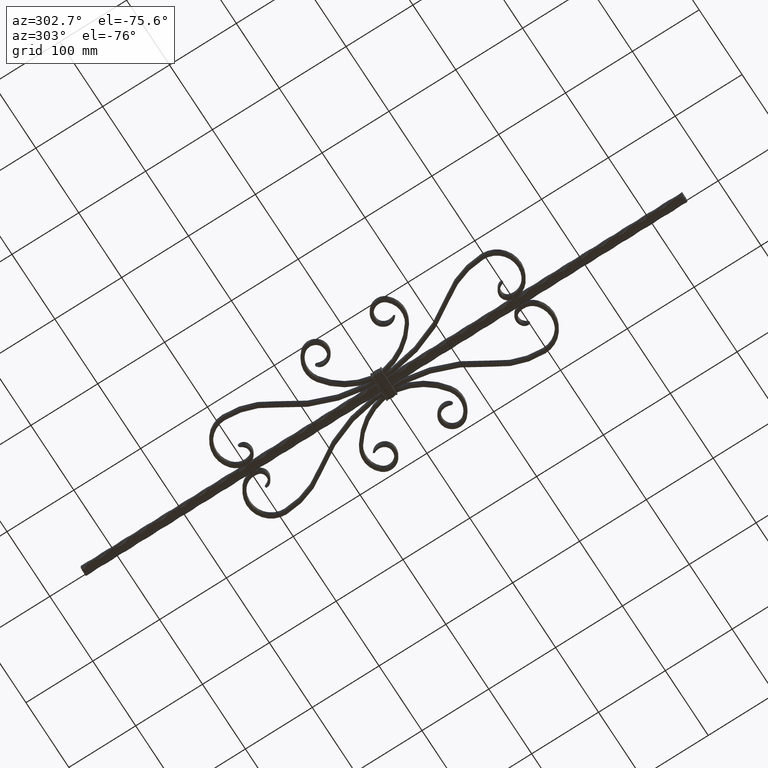
[diagram: clean part render]
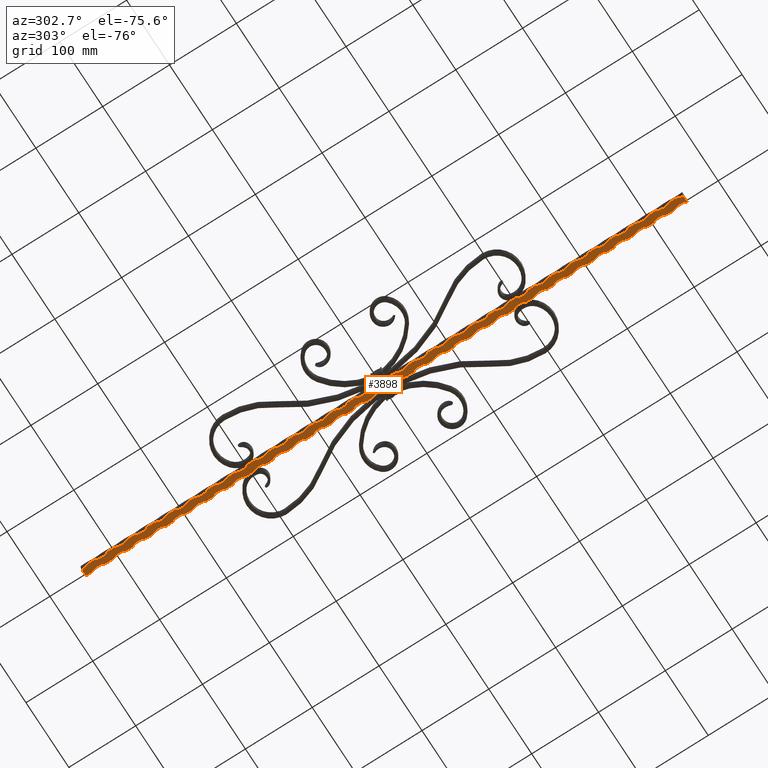
[diagram: same view with one face highlighted and labeled with its STEP entity id]
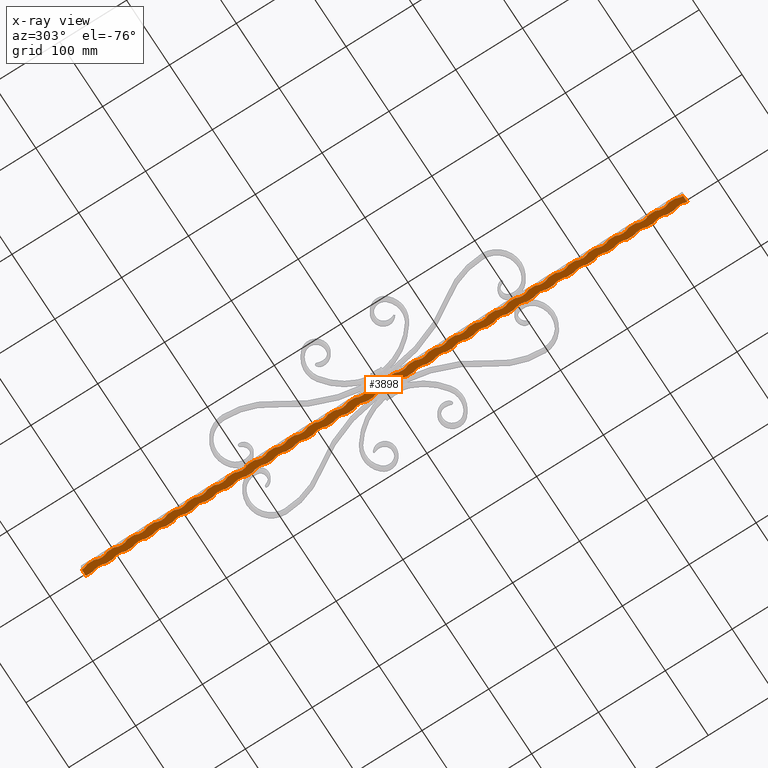
[diagram: x-ray of the same camera — body ghosted, the highlighted face saturated]
A machine part, auxiliary view. The second image highlights one B-rep face of the part: STEP entity #3898.
The next image is the same camera in x-ray: the body ghosted, the highlighted face saturated — about 0% of this face is hidden behind the body in this view.
In plain terms, the highlighted planar face has unit normal (0, 0, 1).
Its self-contained STEP definition (entity closure, byte-faithful):
#3 = LINE ( 'NONE', #18855, #5830 ) ;
#19 = DIRECTION ( 'NONE',  ( 1.000000000000000000, 0.000000000000000000, 0.000000000000000000 ) ) ;
#31 = ORIENTED_EDGE ( 'NONE', *, *, #15988, .T. ) ;
#110 = VERTEX_POINT ( 'NONE', #17552 ) ;
#119 = EDGE_CURVE ( 'NONE', #13911, #14201, #15352, .T. ) ;
#135 = LINE ( 'NONE', #3250, #12980 ) ;
#140 = ORIENTED_EDGE ( 'NONE', *, *, #8103, .T. ) ;
#164 = CARTESIAN_POINT ( 'NONE',  ( 5.999999999999999112, 450.0000000000000000, -6.000000000000000000 ) ) ;
#188 = VERTEX_POINT ( 'NONE', #17796 ) ;
#200 = EDGE_CURVE ( 'NONE', #15283, #12580, #20291, .T. ) ;
#205 = CARTESIAN_POINT ( 'NONE',  ( -24.75000000000003908, 360.0000000000000000, -6.000000000000000000 ) ) ;
#207 = VERTEX_POINT ( 'NONE', #15921 ) ;
#244 = CARTESIAN_POINT ( 'NONE',  ( -6.000000000000001776, -379.9999999999999432, -5.999999999999999112 ) ) ;
#278 = ORIENTED_EDGE ( 'NONE', *, *, #3124, .T. ) ;
#283 = AXIS2_PLACEMENT_3D ( 'NONE', #14426, #20273, #21894 ) ;
#295 = DIRECTION ( 'NONE',  ( 1.000000000000000000, 0.000000000000000000, 0.000000000000000000 ) ) ;
#325 = VERTEX_POINT ( 'NONE', #4570 ) ;
#350 = CIRCLE ( 'NONE', #11681, 21.25000000000003553 ) ;
#406 = LINE ( 'NONE', #17790, #18748 ) ;
#413 = CARTESIAN_POINT ( 'NONE',  ( 24.75000000000003908, 400.0000000000000000, -6.000000000000000888 ) ) ;
#431 = EDGE_CURVE ( 'NONE', #5694, #8804, #7205, .T. ) ;
#439 = ORIENTED_EDGE ( 'NONE', *, *, #6783, .T. ) ;
#462 = DIRECTION ( 'NONE',  ( -0.000000000000000000, -1.000000000000000000, -0.000000000000000000 ) ) ;
#501 = DIRECTION ( 'NONE',  ( 1.000000000000000000, 0.000000000000000000, 0.000000000000000000 ) ) ;
#573 = VECTOR ( 'NONE', #23234, 1000.000000000000000 ) ;
#586 = EDGE_CURVE ( 'NONE', #19421, #7584, #12737, .T. ) ;
#599 = LINE ( 'NONE', #8884, #7650 ) ;
#609 = EDGE_CURVE ( 'NONE', #2552, #110, #17929, .T. ) ;
#678 = CARTESIAN_POINT ( 'NONE',  ( -24.75000000000003908, -90.00000000000002842, -6.000000000000000000 ) ) ;
#695 = VERTEX_POINT ( 'NONE', #14687 ) ;
#704 = CARTESIAN_POINT ( 'NONE',  ( 5.999999999999999112, 450.0000000000000000, -6.000000000000000000 ) ) ;
#706 = LINE ( 'NONE', #704, #10647 ) ;
#715 = EDGE_CURVE ( 'NONE', #767, #19499, #21115, .T. ) ;
#728 = DIRECTION ( 'NONE',  ( -0.000000000000000000, -1.000000000000000000, -0.000000000000000000 ) ) ;
#756 = EDGE_CURVE ( 'NONE', #2434, #15653, #2506, .T. ) ;
#767 = VERTEX_POINT ( 'NONE', #14027 ) ;
#781 = ORIENTED_EDGE ( 'NONE', *, *, #4718, .F. ) ;
#809 = DIRECTION ( 'NONE',  ( 0.000000000000000000, 0.000000000000000000, 1.000000000000000000 ) ) ;
#862 = CARTESIAN_POINT ( 'NONE',  ( 5.999999999999999112, 450.0000000000000000, -6.000000000000000000 ) ) ;
#865 = CIRCLE ( 'NONE', #18680, 21.25000000000004263 ) ;
#968 = EDGE_CURVE ( 'NONE', #22333, #9623, #4233, .T. ) ;
#969 = EDGE_CURVE ( 'NONE', #20185, #8881, #5413, .T. ) ;
#989 = DIRECTION ( 'NONE',  ( 1.000000000000000000, 0.000000000000000000, 0.000000000000000000 ) ) ;
#1012 = CIRCLE ( 'NONE', #5218, 21.25000000000003553 ) ;
#1022 = VERTEX_POINT ( 'NONE', #22604 ) ;
#1032 = CARTESIAN_POINT ( 'NONE',  ( 5.999999999999999112, 450.0000000000000000, -6.000000000000000000 ) ) ;
#1128 = DIRECTION ( 'NONE',  ( -0.000000000000000000, -1.000000000000000000, -0.000000000000000000 ) ) ;
#1156 = DIRECTION ( 'NONE',  ( -0.000000000000000000, -1.000000000000000000, -0.000000000000000000 ) ) ;
#1169 = CARTESIAN_POINT ( 'NONE',  ( 5.999999999999999112, 450.0000000000000000, -6.000000000000000000 ) ) ;
#1173 = LINE ( 'NONE', #11290, #12264 ) ;
#1189 = CARTESIAN_POINT ( 'NONE',  ( -6.000000000000001776, 229.9999999999999716, -6.000000000000000000 ) ) ;
#1211 = VECTOR ( 'NONE', #11659, 1000.000000000000000 ) ;
#1246 = CARTESIAN_POINT ( 'NONE',  ( 5.999999999999998224, 290.0000000000000568, -6.000000000000001776 ) ) ;
#1248 = DIRECTION ( 'NONE',  ( -0.000000000000000000, -1.000000000000000000, -0.000000000000000000 ) ) ;
#1256 = CIRCLE ( 'NONE', #10106, 21.25000000000004263 ) ;
#1259 = ORIENTED_EDGE ( 'NONE', *, *, #16055, .T. ) ;
#1264 = AXIS2_PLACEMENT_3D ( 'NONE', #4577, #6707, #4724 ) ;
#1286 = VERTEX_POINT ( 'NONE', #19186 ) ;
#1293 = CARTESIAN_POINT ( 'NONE',  ( 5.999999999999998224, 20.00000000000001776, -6.000000000000001776 ) ) ;
#1298 = EDGE_CURVE ( 'NONE', #2614, #15663, #11541, .T. ) ;
#1319 = DIRECTION ( 'NONE',  ( 0.000000000000000000, 0.000000000000000000, 1.000000000000000000 ) ) ;
#1352 = VERTEX_POINT ( 'NONE', #22988 ) ;
#1356 = DIRECTION ( 'NONE',  ( 0.000000000000000000, 0.000000000000000000, 1.000000000000000000 ) ) ;
#1364 = DIRECTION ( 'NONE',  ( -0.000000000000000000, -1.000000000000000000, -0.000000000000000000 ) ) ;
#1373 = DIRECTION ( 'NONE',  ( 1.000000000000000000, 0.000000000000000000, 0.000000000000000000 ) ) ;
#1378 = VERTEX_POINT ( 'NONE', #19402 ) ;
#1386 = AXIS2_PLACEMENT_3D ( 'NONE', #17615, #13733, #2797 ) ;
#1478 = CARTESIAN_POINT ( 'NONE',  ( 5.999999999999999112, 450.0000000000000000, -6.000000000000000000 ) ) ;
#1503 = CARTESIAN_POINT ( 'NONE',  ( -6.000000000000001776, 10.00000000000000888, -5.999999999999999112 ) ) ;
#1520 = EDGE_CURVE ( 'NONE', #17485, #2585, #22552, .T. ) ;
#1543 = VECTOR ( 'NONE', #1128, 1000.000000000000000 ) ;
#1552 = DIRECTION ( 'NONE',  ( 0.000000000000000000, 0.000000000000000000, 1.000000000000000000 ) ) ;
#1556 = EDGE_CURVE ( 'NONE', #8132, #188, #14998, .T. ) ;
#1572 = DIRECTION ( 'NONE',  ( 0.000000000000000000, 0.000000000000000000, 1.000000000000000000 ) ) ;
#1595 = VECTOR ( 'NONE', #1248, 1000.000000000000000 ) ;
#1599 = EDGE_CURVE ( 'NONE', #1022, #207, #11820, .T. ) ;
#1626 = VERTEX_POINT ( 'NONE', #14446 ) ;
#1669 = EDGE_CURVE ( 'NONE', #21461, #17027, #5957, .T. ) ;
#1704 = ORIENTED_EDGE ( 'NONE', *, *, #11308, .T. ) ;
#1742 = ORIENTED_EDGE ( 'NONE', *, *, #15801, .T. ) ;
#1751 = DIRECTION ( 'NONE',  ( 1.000000000000000000, 0.000000000000000000, 0.000000000000000000 ) ) ;
#1764 = VECTOR ( 'NONE', #20248, 1000.000000000000000 ) ;
#1765 = CARTESIAN_POINT ( 'NONE',  ( -6.000000000000001776, -139.9999999999999716, -5.999999999999999112 ) ) ;
#1770 = CARTESIAN_POINT ( 'NONE',  ( -6.000000000000001776, -70.00000000000000000, -6.000000000000000000 ) ) ;
#1776 = EDGE_CURVE ( 'NONE', #8816, #11956, #15587, .T. ) ;
#1838 = AXIS2_PLACEMENT_3D ( 'NONE', #5433, #9183, #22010 ) ;
#1867 = VECTOR ( 'NONE', #22045, 1000.000000000000000 ) ;
#1919 = VERTEX_POINT ( 'NONE', #2461 ) ;
#1938 = DIRECTION ( 'NONE',  ( 0.000000000000000000, 0.000000000000000000, 1.000000000000000000 ) ) ;
#1975 = LINE ( 'NONE', #11507, #17691 ) ;
#2024 = EDGE_CURVE ( 'NONE', #23386, #15367, #7423, .T. ) ;
#2036 = CIRCLE ( 'NONE', #17632, 21.25000000000004263 ) ;
#2074 = CARTESIAN_POINT ( 'NONE',  ( 5.999999999999998224, -3.469446951953614189E-15, -6.000000000000000888 ) ) ;
#2080 = CARTESIAN_POINT ( 'NONE',  ( 5.999999999999998224, 110.0000000000000426, -6.000000000000001776 ) ) ;
#2106 = DIRECTION ( 'NONE',  ( 1.000000000000000000, 0.000000000000000000, 0.000000000000000000 ) ) ;
#2124 = CARTESIAN_POINT ( 'NONE',  ( -6.000000000000001776, -100.0000000000000284, -6.000000000000000000 ) ) ;
#2130 = CARTESIAN_POINT ( 'NONE',  ( -24.75000000000003908, 210.0000000000000000, -6.000000000000000000 ) ) ;
#2145 = CARTESIAN_POINT ( 'NONE',  ( 5.999999999999998224, -60.00000000000000000, -6.000000000000000888 ) ) ;
#2152 = CIRCLE ( 'NONE', #3535, 21.25000000000003553 ) ;
#2223 = DIRECTION ( 'NONE',  ( 0.000000000000000000, 0.000000000000000000, 1.000000000000000000 ) ) ;
#2233 = DIRECTION ( 'NONE',  ( -0.000000000000000000, -1.000000000000000000, -0.000000000000000000 ) ) ;
#2243 = VERTEX_POINT ( 'NONE', #6014 ) ;
#2296 = VECTOR ( 'NONE', #11974, 1000.000000000000000 ) ;
#2312 = EDGE_CURVE ( 'NONE', #4495, #1286, #12960, .T. ) ;
#2336 = ORIENTED_EDGE ( 'NONE', *, *, #17584, .F. ) ;
#2348 = CIRCLE ( 'NONE', #14218, 21.25000000000003553 ) ;
#2434 = VERTEX_POINT ( 'NONE', #5516 ) ;
#2457 = CIRCLE ( 'NONE', #1838, 21.25000000000004263 ) ;
#2461 = CARTESIAN_POINT ( 'NONE',  ( -6.000000000000001776, -110.0000000000000426, -5.999999999999999112 ) ) ;
#2477 = DIRECTION ( 'NONE',  ( -0.000000000000000000, -1.000000000000000000, -0.000000000000000000 ) ) ;
#2494 = DIRECTION ( 'NONE',  ( -0.000000000000000000, -1.000000000000000000, -0.000000000000000000 ) ) ;
#2503 = CIRCLE ( 'NONE', #4168, 21.25000000000004263 ) ;
#2506 = CIRCLE ( 'NONE', #5856, 21.25000000000003553 ) ;
#2514 = CARTESIAN_POINT ( 'NONE',  ( -6.000000000000000888, 450.0000000000000000, -6.000000000000000000 ) ) ;
#2520 = EDGE_CURVE ( 'NONE', #4223, #1352, #2152, .T. ) ;
#2552 = VERTEX_POINT ( 'NONE', #18350 ) ;
#2585 = VERTEX_POINT ( 'NONE', #2074 ) ;
#2587 = VECTOR ( 'NONE', #10707, 1000.000000000000000 ) ;
#2590 = EDGE_CURVE ( 'NONE', #2745, #1626, #14950, .T. ) ;
#2606 = DIRECTION ( 'NONE',  ( 0.000000000000000000, 0.000000000000000000, 1.000000000000000000 ) ) ;
#2614 = VERTEX_POINT ( 'NONE', #7641 ) ;
#2620 = EDGE_CURVE ( 'NONE', #7872, #17485, #7133, .T. ) ;
#2631 = EDGE_CURVE ( 'NONE', #15916, #22683, #6530, .T. ) ;
#2690 = EDGE_CURVE ( 'NONE', #24105, #15051, #15825, .T. ) ;
#2693 = DIRECTION ( 'NONE',  ( -0.000000000000000000, -1.000000000000000000, -0.000000000000000000 ) ) ;
#2704 = CIRCLE ( 'NONE', #16773, 21.25000000000003553 ) ;
#2711 = CARTESIAN_POINT ( 'NONE',  ( -24.75000000000003908, 90.00000000000002842, -6.000000000000000000 ) ) ;
#2737 = CARTESIAN_POINT ( 'NONE',  ( -24.75000000000003908, 0.000000000000000000, -6.000000000000000000 ) ) ;
#2745 = VERTEX_POINT ( 'NONE', #10219 ) ;
#2797 = DIRECTION ( 'NONE',  ( 1.000000000000000000, 0.000000000000000000, 0.000000000000000000 ) ) ;
#2806 = ORIENTED_EDGE ( 'NONE', *, *, #22860, .T. ) ;
#2813 = ORIENTED_EDGE ( 'NONE', *, *, #13442, .T. ) ;
#2819 = DIRECTION ( 'NONE',  ( -0.000000000000000000, -1.000000000000000000, -0.000000000000000000 ) ) ;
#2826 = EDGE_CURVE ( 'NONE', #15051, #325, #1256, .T. ) ;
#2922 = CARTESIAN_POINT ( 'NONE',  ( 5.999999999999999112, 450.0000000000000000, -6.000000000000000000 ) ) ;
#3004 = ORIENTED_EDGE ( 'NONE', *, *, #13165, .T. ) ;
#3039 = CARTESIAN_POINT ( 'NONE',  ( -6.000000000000000888, 450.0000000000000000, -6.000000000000000000 ) ) ;
#3044 = EDGE_CURVE ( 'NONE', #12542, #6411, #6798, .T. ) ;
#3062 = ORIENTED_EDGE ( 'NONE', *, *, #9170, .F. ) ;
#3063 = VERTEX_POINT ( 'NONE', #21144 ) ;
#3075 = ORIENTED_EDGE ( 'NONE', *, *, #16445, .T. ) ;
#3079 = EDGE_CURVE ( 'NONE', #7313, #7584, #13782, .T. ) ;
#3085 = CARTESIAN_POINT ( 'NONE',  ( 5.999999999999998224, 140.0000000000000000, -6.000000000000001776 ) ) ;
#3088 = EDGE_CURVE ( 'NONE', #2552, #12214, #17250, .T. ) ;
#3096 = DIRECTION ( 'NONE',  ( -0.000000000000000000, -1.000000000000000000, -0.000000000000000000 ) ) ;
#3122 = VERTEX_POINT ( 'NONE', #3085 ) ;
#3124 = EDGE_CURVE ( 'NONE', #15413, #1919, #8862, .T. ) ;
#3133 = CARTESIAN_POINT ( 'NONE',  ( 5.999999999999998224, 90.00000000000002842, -6.000000000000000888 ) ) ;
#3205 = ORIENTED_EDGE ( 'NONE', *, *, #10992, .F. ) ;
#3244 = DIRECTION ( 'NONE',  ( 1.000000000000000000, 0.000000000000000000, 0.000000000000000000 ) ) ;
#3250 = CARTESIAN_POINT ( 'NONE',  ( 5.999999999999999112, 450.0000000000000000, -6.000000000000000000 ) ) ;
#3264 = EDGE_CURVE ( 'NONE', #17675, #21866, #13209, .T. ) ;
#3268 = CARTESIAN_POINT ( 'NONE',  ( -24.75000000000003908, -60.00000000000000000, -6.000000000000000000 ) ) ;
#3321 = DIRECTION ( 'NONE',  ( -0.000000000000000000, -1.000000000000000000, -0.000000000000000000 ) ) ;
#3336 = CIRCLE ( 'NONE', #6319, 21.25000000000003553 ) ;
#3353 = CARTESIAN_POINT ( 'NONE',  ( 5.999999999999998224, 180.0000000000000000, -6.000000000000000888 ) ) ;
#3364 = VECTOR ( 'NONE', #2494, 1000.000000000000000 ) ;
#3459 = CARTESIAN_POINT ( 'NONE',  ( -6.000000000000001776, 370.0000000000000000, -5.999999999999999112 ) ) ;
#3486 = LINE ( 'NONE', #2922, #11377 ) ;
#3535 = AXIS2_PLACEMENT_3D ( 'NONE', #12773, #16478, #5348 ) ;
#3555 = CARTESIAN_POINT ( 'NONE',  ( -6.000000000000000888, 450.0000000000000000, -6.000000000000000000 ) ) ;
#3573 = CARTESIAN_POINT ( 'NONE',  ( -6.000000000000000888, 450.0000000000000000, -6.000000000000000000 ) ) ;
#3586 = EDGE_CURVE ( 'NONE', #12240, #12214, #350, .T. ) ;
#3600 = ORIENTED_EDGE ( 'NONE', *, *, #22044, .T. ) ;
#3609 = VERTEX_POINT ( 'NONE', #9326 ) ;
#3652 = ORIENTED_EDGE ( 'NONE', *, *, #16909, .T. ) ;
#3654 = DIRECTION ( 'NONE',  ( -0.000000000000000000, -1.000000000000000000, -0.000000000000000000 ) ) ;
#3694 = DIRECTION ( 'NONE',  ( 0.000000000000000000, 0.000000000000000000, 1.000000000000000000 ) ) ;
#3736 = VERTEX_POINT ( 'NONE', #15325 ) ;
#3771 = ORIENTED_EDGE ( 'NONE', *, *, #3088, .F. ) ;
#3793 = ORIENTED_EDGE ( 'NONE', *, *, #21609, .F. ) ;
#3798 = CARTESIAN_POINT ( 'NONE',  ( -6.000000000000001776, 159.9999999999999716, -5.999999999999999112 ) ) ;
#3842 = VECTOR ( 'NONE', #9303, 1000.000000000000000 ) ;
#3856 = AXIS2_PLACEMENT_3D ( 'NONE', #17199, #17356, #4185 ) ;
#3857 = AXIS2_PLACEMENT_3D ( 'NONE', #22871, #17331, #6204 ) ;
#3892 = CARTESIAN_POINT ( 'NONE',  ( -6.000000000000001776, -10.00000000000000711, -6.000000000000000000 ) ) ;
#3898 = ADVANCED_FACE ( 'NONE', ( #4444 ), #4729, .F. ) ;
#3902 = CARTESIAN_POINT ( 'NONE',  ( 24.75000000000003908, 339.9999999999999432, -6.000000000000000888 ) ) ;
#3981 = DIRECTION ( 'NONE',  ( 0.000000000000000000, 0.000000000000000000, 1.000000000000000000 ) ) ;
#3999 = ORIENTED_EDGE ( 'NONE', *, *, #2826, .T. ) ;
#4000 = AXIS2_PLACEMENT_3D ( 'NONE', #13898, #4694, #21197 ) ;
#4040 = DIRECTION ( 'NONE',  ( -0.000000000000000000, -1.000000000000000000, -0.000000000000000000 ) ) ;
#4060 = EDGE_CURVE ( 'NONE', #19499, #4934, #21589, .T. ) ;
#4120 = ORIENTED_EDGE ( 'NONE', *, *, #6632, .T. ) ;
#4121 = ORIENTED_EDGE ( 'NONE', *, *, #24015, .T. ) ;
#4123 = CARTESIAN_POINT ( 'NONE',  ( -6.000000000000000888, 450.0000000000000000, -6.000000000000000000 ) ) ;
#4125 = VECTOR ( 'NONE', #1156, 1000.000000000000000 ) ;
#4168 = AXIS2_PLACEMENT_3D ( 'NONE', #8221, #15679, #8542 ) ;
#4185 = DIRECTION ( 'NONE',  ( 1.000000000000000000, 0.000000000000000000, 0.000000000000000000 ) ) ;
#4223 = VERTEX_POINT ( 'NONE', #11493 ) ;
#4233 = CIRCLE ( 'NONE', #10857, 21.25000000000004263 ) ;
#4236 = EDGE_CURVE ( 'NONE', #14201, #7369, #11727, .T. ) ;
#4253 = VECTOR ( 'NONE', #4293, 1000.000000000000000 ) ;
#4293 = DIRECTION ( 'NONE',  ( -0.000000000000000000, -1.000000000000000000, -0.000000000000000000 ) ) ;
#4306 = EDGE_CURVE ( 'NONE', #8132, #15663, #8232, .T. ) ;
#4375 = DIRECTION ( 'NONE',  ( 1.000000000000000000, 0.000000000000000000, 0.000000000000000000 ) ) ;
#4379 = ORIENTED_EDGE ( 'NONE', *, *, #12778, .T. ) ;
#4384 = CIRCLE ( 'NONE', #22802, 21.25000000000003553 ) ;
#4385 = CARTESIAN_POINT ( 'NONE',  ( -6.000000000000001776, 250.0000000000000000, -5.999999999999999112 ) ) ;
#4398 = CARTESIAN_POINT ( 'NONE',  ( 5.999999999999998224, -149.9999999999999716, -6.000000000000000888 ) ) ;
#4397 = CARTESIAN_POINT ( 'NONE',  ( -6.000000000000000888, 450.0000000000000000, -6.000000000000000000 ) ) ;
#4410 = ORIENTED_EDGE ( 'NONE', *, *, #5452, .F. ) ;
#4418 = ORIENTED_EDGE ( 'NONE', *, *, #12087, .T. ) ;
#4444 = FACE_OUTER_BOUND ( 'NONE', #13906, .T. ) ;
#4447 = EDGE_CURVE ( 'NONE', #15027, #20289, #19826, .T. ) ;
#4471 = EDGE_CURVE ( 'NONE', #695, #10669, #16623, .T. ) ;
#4495 = VERTEX_POINT ( 'NONE', #6844 ) ;
#4546 = LINE ( 'NONE', #11959, #4253 ) ;
#4566 = DIRECTION ( 'NONE',  ( 1.000000000000000000, 0.000000000000000000, 0.000000000000000000 ) ) ;
#4568 = ORIENTED_EDGE ( 'NONE', *, *, #13817, .F. ) ;
#4570 = CARTESIAN_POINT ( 'NONE',  ( 5.999999999999998224, -120.0000000000000568, -6.000000000000000888 ) ) ;
#4577 = CARTESIAN_POINT ( 'NONE',  ( 24.75000000000003908, 310.0000000000000000, -6.000000000000000888 ) ) ;
#4587 = CARTESIAN_POINT ( 'NONE',  ( -3.500000000000003109, -450.0000000000000000, -6.000000000000000000 ) ) ;
#4608 = LINE ( 'NONE', #2514, #6661 ) ;
#4659 = EDGE_CURVE ( 'NONE', #1626, #19886, #20714, .T. ) ;
#4662 = VERTEX_POINT ( 'NONE', #4587 ) ;
#4673 = CARTESIAN_POINT ( 'NONE',  ( -6.000000000000001776, 280.0000000000000000, -5.999999999999999112 ) ) ;
#4694 = DIRECTION ( 'NONE',  ( 0.000000000000000000, 0.000000000000000000, 1.000000000000000000 ) ) ;
#4699 = LINE ( 'NONE', #19721, #4125 ) ;
#4718 = EDGE_CURVE ( 'NONE', #13567, #13076, #4699, .T. ) ;
#4724 = DIRECTION ( 'NONE',  ( 1.000000000000000000, 0.000000000000000000, 0.000000000000000000 ) ) ;
#4729 = PLANE ( 'NONE',  #283 ) ;
#4787 = DIRECTION ( 'NONE',  ( -0.000000000000000000, -1.000000000000000000, -0.000000000000000000 ) ) ;
#4791 = ORIENTED_EDGE ( 'NONE', *, *, #17662, .T. ) ;
#4809 = AXIS2_PLACEMENT_3D ( 'NONE', #4960, #14395, #3244 ) ;
#4817 = CARTESIAN_POINT ( 'NONE',  ( 5.999999999999998224, -129.9999999999999432, -6.000000000000001776 ) ) ;
#4830 = VERTEX_POINT ( 'NONE', #5723 ) ;
#4833 = CARTESIAN_POINT ( 'NONE',  ( 24.75000000000003908, 370.0000000000000000, -6.000000000000000888 ) ) ;
#4868 = ORIENTED_EDGE ( 'NONE', *, *, #586, .F. ) ;
#4934 = VERTEX_POINT ( 'NONE', #11029 ) ;
#4960 = CARTESIAN_POINT ( 'NONE',  ( 24.75000000000003908, -440.0000000000000000, -6.000000000000000888 ) ) ;
#4986 = CARTESIAN_POINT ( 'NONE',  ( 5.999999999999998224, 120.0000000000000000, -6.000000000000000888 ) ) ;
#5018 = DIRECTION ( 'NONE',  ( -0.000000000000000000, -1.000000000000000000, -0.000000000000000000 ) ) ;
#5037 = CARTESIAN_POINT ( 'NONE',  ( -6.000000000000000888, 450.0000000000000000, -6.000000000000000000 ) ) ;
#5099 = CIRCLE ( 'NONE', #18204, 21.25000000000004263 ) ;
#5111 = DIRECTION ( 'NONE',  ( 1.000000000000000000, 0.000000000000000000, 0.000000000000000000 ) ) ;
#5133 = VERTEX_POINT ( 'NONE', #10587 ) ;
#5157 = CARTESIAN_POINT ( 'NONE',  ( 5.999999999999998224, -389.9999999999999432, -6.000000000000000888 ) ) ;
#5183 = EDGE_CURVE ( 'NONE', #18104, #14892, #11105, .T. ) ;
#5218 = AXIS2_PLACEMENT_3D ( 'NONE', #6675, #8314, #14139 ) ;
#5235 = EDGE_CURVE ( 'NONE', #8816, #4830, #22718, .T. ) ;
#5247 = CARTESIAN_POINT ( 'NONE',  ( 5.999999999999998224, 29.99999999999996803, -6.000000000000000888 ) ) ;
#5255 = AXIS2_PLACEMENT_3D ( 'NONE', #19965, #18098, #7072 ) ;
#5270 = ORIENTED_EDGE ( 'NONE', *, *, #200, .T. ) ;
#5310 = EDGE_CURVE ( 'NONE', #7912, #110, #22440, .T. ) ;
#5338 = DIRECTION ( 'NONE',  ( -0.000000000000000000, -1.000000000000000000, -0.000000000000000000 ) ) ;
#5348 = DIRECTION ( 'NONE',  ( 1.000000000000000000, 0.000000000000000000, 0.000000000000000000 ) ) ;
#5360 = VECTOR ( 'NONE', #7954, 1000.000000000000000 ) ;
#5413 = CIRCLE ( 'NONE', #7433, 21.25000000000004263 ) ;
#5419 = DIRECTION ( 'NONE',  ( 1.000000000000000000, 0.000000000000000000, 0.000000000000000000 ) ) ;
#5423 = DIRECTION ( 'NONE',  ( 1.000000000000000000, 0.000000000000000000, 0.000000000000000000 ) ) ;
#5425 = EDGE_CURVE ( 'NONE', #11077, #1378, #16879, .T. ) ;
#5433 = CARTESIAN_POINT ( 'NONE',  ( 24.75000000000003908, -169.9999999999999716, -6.000000000000000888 ) ) ;
#5448 = VERTEX_POINT ( 'NONE', #16815 ) ;
#5452 = EDGE_CURVE ( 'NONE', #7313, #1286, #3, .T. ) ;
#5516 = CARTESIAN_POINT ( 'NONE',  ( -6.000000000000001776, -430.0000000000000000, -6.000000000000000000 ) ) ;
#5552 = VERTEX_POINT ( 'NONE', #19091 ) ;
#5655 = CARTESIAN_POINT ( 'NONE',  ( -6.000000000000001776, -190.0000000000000000, -6.000000000000000000 ) ) ;
#5694 = VERTEX_POINT ( 'NONE', #23147 ) ;
#5702 = EDGE_CURVE ( 'NONE', #8924, #20679, #13127, .T. ) ;
#5708 = CARTESIAN_POINT ( 'NONE',  ( -6.000000000000001776, -130.0000000000000568, -6.000000000000000000 ) ) ;
#5723 = CARTESIAN_POINT ( 'NONE',  ( -6.000000000000001776, 190.0000000000000000, -5.999999999999999112 ) ) ;
#5726 = CARTESIAN_POINT ( 'NONE',  ( -6.000000000000001776, 19.99999999999996092, -6.000000000000000000 ) ) ;
#5755 = DIRECTION ( 'NONE',  ( -0.000000000000000000, -1.000000000000000000, -0.000000000000000000 ) ) ;
#5785 = AXIS2_PLACEMENT_3D ( 'NONE', #10376, #23373, #16220 ) ;
#5830 = VECTOR ( 'NONE', #3654, 1000.000000000000000 ) ;
#5856 = AXIS2_PLACEMENT_3D ( 'NONE', #23448, #1319, #14359 ) ;
#5882 = CARTESIAN_POINT ( 'NONE',  ( 5.999999999999998224, -330.0000000000000000, -6.000000000000000888 ) ) ;
#5892 = CARTESIAN_POINT ( 'NONE',  ( 5.999999999999998224, -100.0000000000000284, -6.000000000000001776 ) ) ;
#5898 = CIRCLE ( 'NONE', #3856, 21.25000000000004263 ) ;
#5899 = CARTESIAN_POINT ( 'NONE',  ( -6.000000000000001776, -310.0000000000000000, -6.000000000000000000 ) ) ;
#5906 = EDGE_CURVE ( 'NONE', #15413, #22294, #1173, .T. ) ;
#5957 = LINE ( 'NONE', #1169, #1595 ) ;
#5993 = AXIS2_PLACEMENT_3D ( 'NONE', #6874, #15950, #23350 ) ;
#6002 = LINE ( 'NONE', #18185, #20263 ) ;
#6009 = ORIENTED_EDGE ( 'NONE', *, *, #17631, .F. ) ;
#6014 = CARTESIAN_POINT ( 'NONE',  ( -6.000000000000001776, -399.9999999999999432, -6.000000000000000000 ) ) ;
#6043 = DIRECTION ( 'NONE',  ( 0.000000000000000000, 0.000000000000000000, 1.000000000000000000 ) ) ;
#6049 = EDGE_CURVE ( 'NONE', #13567, #4830, #2348, .T. ) ;
#6089 = CARTESIAN_POINT ( 'NONE',  ( 5.999999999999998224, 420.0000000000000000, -6.000000000000000888 ) ) ;
#6100 = ORIENTED_EDGE ( 'NONE', *, *, #16088, .F. ) ;
#6133 = LINE ( 'NONE', #10025, #20964 ) ;
#6164 = EDGE_CURVE ( 'NONE', #16413, #14840, #15463, .T. ) ;
#6196 = CIRCLE ( 'NONE', #22909, 21.25000000000004263 ) ;
#6204 = DIRECTION ( 'NONE',  ( 1.000000000000000000, 0.000000000000000000, 0.000000000000000000 ) ) ;
#6221 = CARTESIAN_POINT ( 'NONE',  ( -6.000000000000000888, 450.0000000000000000, -6.000000000000000000 ) ) ;
#6228 = CIRCLE ( 'NONE', #18030, 21.25000000000003553 ) ;
#6274 = VECTOR ( 'NONE', #23623, 1000.000000000000000 ) ;
#6288 = DIRECTION ( 'NONE',  ( -0.000000000000000000, -1.000000000000000000, -0.000000000000000000 ) ) ;
#6319 = AXIS2_PLACEMENT_3D ( 'NONE', #21669, #13953, #23291 ) ;
#6320 = AXIS2_PLACEMENT_3D ( 'NONE', #19752, #1356, #5111 ) ;
#6326 = CARTESIAN_POINT ( 'NONE',  ( -24.75000000000003908, -29.99999999999997158, -6.000000000000000000 ) ) ;
#6339 = ORIENTED_EDGE ( 'NONE', *, *, #21430, .T. ) ;
#6364 = CARTESIAN_POINT ( 'NONE',  ( 5.999999999999999112, 450.0000000000000000, -6.000000000000000000 ) ) ;
#6411 = VERTEX_POINT ( 'NONE', #9635 ) ;
#6428 = VERTEX_POINT ( 'NONE', #2124 ) ;
#6430 = DIRECTION ( 'NONE',  ( 1.000000000000000000, 0.000000000000000000, 0.000000000000000000 ) ) ;
#6468 = DIRECTION ( 'NONE',  ( -0.000000000000000000, -1.000000000000000000, -0.000000000000000000 ) ) ;
#6469 = ORIENTED_EDGE ( 'NONE', *, *, #22408, .T. ) ;
#6530 = LINE ( 'NONE', #6221, #10598 ) ;
#6540 = CARTESIAN_POINT ( 'NONE',  ( 5.999999999999999112, 450.0000000000000000, -6.000000000000000000 ) ) ;
#6562 = CARTESIAN_POINT ( 'NONE',  ( -24.75000000000003908, 180.0000000000000000, -6.000000000000000000 ) ) ;
#6632 = EDGE_CURVE ( 'NONE', #15367, #14478, #2036, .T. ) ;
#6661 = VECTOR ( 'NONE', #17310, 1000.000000000000000 ) ;
#6675 = CARTESIAN_POINT ( 'NONE',  ( -24.75000000000003908, -330.0000000000000000, -6.000000000000000000 ) ) ;
#6701 = CARTESIAN_POINT ( 'NONE',  ( -24.75000000000003908, 329.9999999999999432, -6.000000000000000000 ) ) ;
#6707 = DIRECTION ( 'NONE',  ( 0.000000000000000000, 0.000000000000000000, 1.000000000000000000 ) ) ;
#6738 = DIRECTION ( 'NONE',  ( -0.000000000000000000, -1.000000000000000000, -0.000000000000000000 ) ) ;
#6783 = EDGE_CURVE ( 'NONE', #9059, #11077, #17159, .T. ) ;
#6798 = LINE ( 'NONE', #9787, #16664 ) ;
#6804 = CARTESIAN_POINT ( 'NONE',  ( 24.75000000000003908, -259.9999999999999432, -6.000000000000000888 ) ) ;
#6844 = CARTESIAN_POINT ( 'NONE',  ( -6.000000000000001776, 380.0000000000000000, -6.000000000000000000 ) ) ;
#6874 = CARTESIAN_POINT ( 'NONE',  ( 24.75000000000003908, 159.9999999999999716, -6.000000000000000888 ) ) ;
#6880 = DIRECTION ( 'NONE',  ( 1.000000000000000000, 0.000000000000000000, 0.000000000000000000 ) ) ;
#6882 = CARTESIAN_POINT ( 'NONE',  ( 5.999999999999998224, 300.0000000000000000, -6.000000000000000888 ) ) ;
#6904 = EDGE_CURVE ( 'NONE', #7970, #22333, #3486, .T. ) ;
#6996 = ORIENTED_EDGE ( 'NONE', *, *, #756, .T. ) ;
#7015 = VERTEX_POINT ( 'NONE', #21877 ) ;
#7050 = DIRECTION ( 'NONE',  ( -0.000000000000000000, -1.000000000000000000, -0.000000000000000000 ) ) ;
#7072 = DIRECTION ( 'NONE',  ( 1.000000000000000000, 0.000000000000000000, 0.000000000000000000 ) ) ;
#7080 = VECTOR ( 'NONE', #23987, 1000.000000000000000 ) ;
#7114 = CIRCLE ( 'NONE', #22842, 21.25000000000003553 ) ;
#7133 = LINE ( 'NONE', #15657, #5360 ) ;
#7156 = LINE ( 'NONE', #15165, #22548 ) ;
#7195 = VERTEX_POINT ( 'NONE', #4385 ) ;
#7205 = CIRCLE ( 'NONE', #8833, 21.25000000000003553 ) ;
#7229 = ORIENTED_EDGE ( 'NONE', *, *, #4306, .T. ) ;
#7238 = CARTESIAN_POINT ( 'NONE',  ( -6.000000000000001776, -39.99999999999997868, -6.000000000000000000 ) ) ;
#7267 = CARTESIAN_POINT ( 'NONE',  ( 24.75000000000003908, 430.0000000000000000, -6.000000000000000888 ) ) ;
#7293 = ORIENTED_EDGE ( 'NONE', *, *, #13754, .T. ) ;
#7313 = VERTEX_POINT ( 'NONE', #10318 ) ;
#7329 = EDGE_CURVE ( 'NONE', #10516, #18507, #23522, .T. ) ;
#7342 = ORIENTED_EDGE ( 'NONE', *, *, #15323, .T. ) ;
#7369 = VERTEX_POINT ( 'NONE', #21854 ) ;
#7404 = VECTOR ( 'NONE', #5755, 1000.000000000000000 ) ;
#7410 = CARTESIAN_POINT ( 'NONE',  ( 5.999999999999999112, -450.0000000000000000, -6.000000000000000000 ) ) ;
#7415 = VECTOR ( 'NONE', #2233, 1000.000000000000000 ) ;
#7423 = LINE ( 'NONE', #8903, #1867 ) ;
#7433 = AXIS2_PLACEMENT_3D ( 'NONE', #22088, #12848, #20453 ) ;
#7560 = LINE ( 'NONE', #19428, #2296 ) ;
#7568 = ORIENTED_EDGE ( 'NONE', *, *, #119, .T. ) ;
#7584 = VERTEX_POINT ( 'NONE', #16479 ) ;
#7600 = VECTOR ( 'NONE', #15119, 1000.000000000000000 ) ;
#7641 = CARTESIAN_POINT ( 'NONE',  ( -6.000000000000001776, 80.00000000000001421, -6.000000000000000000 ) ) ;
#7650 = VECTOR ( 'NONE', #3321, 1000.000000000000000 ) ;
#7675 = EDGE_CURVE ( 'NONE', #22062, #7195, #19165, .T. ) ;
#7688 = ORIENTED_EDGE ( 'NONE', *, *, #20731, .T. ) ;
#7710 = ORIENTED_EDGE ( 'NONE', *, *, #4659, .T. ) ;
#7738 = CARTESIAN_POINT ( 'NONE',  ( 5.999999999999999112, 450.0000000000000000, -6.000000000000000000 ) ) ;
#7754 = ORIENTED_EDGE ( 'NONE', *, *, #9496, .T. ) ;
#7812 = CARTESIAN_POINT ( 'NONE',  ( -24.75000000000003908, -239.9999999999999432, -6.000000000000000000 ) ) ;
#7856 = EDGE_CURVE ( 'NONE', #16273, #1022, #15371, .T. ) ;
#7872 = VERTEX_POINT ( 'NONE', #5247 ) ;
#7882 = DIRECTION ( 'NONE',  ( -0.000000000000000000, -1.000000000000000000, -0.000000000000000000 ) ) ;
#7912 = VERTEX_POINT ( 'NONE', #10548 ) ;
#7922 = EDGE_CURVE ( 'NONE', #20963, #16870, #15086, .T. ) ;
#7954 = DIRECTION ( 'NONE',  ( -0.000000000000000000, -1.000000000000000000, -0.000000000000000000 ) ) ;
#7970 = VERTEX_POINT ( 'NONE', #5882 ) ;
#8032 = EDGE_CURVE ( 'NONE', #9435, #1352, #1975, .T. ) ;
#8068 = DIRECTION ( 'NONE',  ( 0.000000000000000000, 0.000000000000000000, 1.000000000000000000 ) ) ;
#8103 = EDGE_CURVE ( 'NONE', #5448, #12211, #19730, .T. ) ;
#8132 = VERTEX_POINT ( 'NONE', #12064 ) ;
#8144 = VERTEX_POINT ( 'NONE', #11920 ) ;
#8155 = ORIENTED_EDGE ( 'NONE', *, *, #19905, .T. ) ;
#8161 = CIRCLE ( 'NONE', #1386, 21.25000000000003553 ) ;
#8218 = DIRECTION ( 'NONE',  ( 1.000000000000000000, 0.000000000000000000, 0.000000000000000000 ) ) ;
#8221 = CARTESIAN_POINT ( 'NONE',  ( 24.75000000000003908, -410.0000000000000000, -6.000000000000000888 ) ) ;
#8232 = CIRCLE ( 'NONE', #21472, 21.25000000000003553 ) ;
#8314 = DIRECTION ( 'NONE',  ( 0.000000000000000000, 0.000000000000000000, 1.000000000000000000 ) ) ;
#8345 = DIRECTION ( 'NONE',  ( 1.000000000000000000, 0.000000000000000000, 0.000000000000000000 ) ) ;
#8430 = EDGE_CURVE ( 'NONE', #10805, #3609, #17665, .T. ) ;
#8448 = ORIENTED_EDGE ( 'NONE', *, *, #4447, .F. ) ;
#8490 = CARTESIAN_POINT ( 'NONE',  ( 5.999999999999998224, 270.0000000000000000, -6.000000000000000888 ) ) ;
#8531 = VECTOR ( 'NONE', #2693, 1000.000000000000000 ) ;
#8542 = DIRECTION ( 'NONE',  ( 1.000000000000000000, 0.000000000000000000, 0.000000000000000000 ) ) ;
#8606 = CARTESIAN_POINT ( 'NONE',  ( 5.999999999999998224, -90.00000000000002842, -6.000000000000000888 ) ) ;
#8697 = ORIENTED_EDGE ( 'NONE', *, *, #1669, .T. ) ;
#8700 = CARTESIAN_POINT ( 'NONE',  ( -6.000000000000001776, -200.0000000000000000, -5.999999999999999112 ) ) ;
#8729 = DIRECTION ( 'NONE',  ( 1.000000000000000000, 0.000000000000000000, 0.000000000000000000 ) ) ;
#8769 = CARTESIAN_POINT ( 'NONE',  ( 24.75000000000003908, 70.00000000000000000, -6.000000000000000888 ) ) ;
#8796 = ORIENTED_EDGE ( 'NONE', *, *, #3079, .T. ) ;
#8804 = VERTEX_POINT ( 'NONE', #15967 ) ;
#8816 = VERTEX_POINT ( 'NONE', #15884 ) ;
#8833 = AXIS2_PLACEMENT_3D ( 'NONE', #22239, #21916, #5423 ) ;
#8862 = CIRCLE ( 'NONE', #16321, 21.25000000000003553 ) ;
#8880 = LINE ( 'NONE', #22360, #23699 ) ;
#8881 = VERTEX_POINT ( 'NONE', #5157 ) ;
#8884 = CARTESIAN_POINT ( 'NONE',  ( -6.000000000000000888, 450.0000000000000000, -6.000000000000000000 ) ) ;
#8896 = ORIENTED_EDGE ( 'NONE', *, *, #19015, .T. ) ;
#8903 = CARTESIAN_POINT ( 'NONE',  ( 5.999999999999999112, 450.0000000000000000, -6.000000000000000000 ) ) ;
#8920 = DIRECTION ( 'NONE',  ( 0.000000000000000000, 0.000000000000000000, 1.000000000000000000 ) ) ;
#8924 = VERTEX_POINT ( 'NONE', #3353 ) ;
#8932 = CARTESIAN_POINT ( 'NONE',  ( 5.999999999999998224, -180.0000000000000000, -6.000000000000000888 ) ) ;
#8978 = CARTESIAN_POINT ( 'NONE',  ( -6.000000000000000888, 450.0000000000000000, -6.000000000000000000 ) ) ;
#9059 = VERTEX_POINT ( 'NONE', #18963 ) ;
#9106 = CARTESIAN_POINT ( 'NONE',  ( 24.75000000000003908, 220.0000000000000000, -6.000000000000000888 ) ) ;
#9130 = VECTOR ( 'NONE', #18247, 1000.000000000000000 ) ;
#9147 = AXIS2_PLACEMENT_3D ( 'NONE', #9657, #11533, #18994 ) ;
#9170 = EDGE_CURVE ( 'NONE', #4223, #20288, #11274, .T. ) ;
#9171 = ORIENTED_EDGE ( 'NONE', *, *, #23215, .T. ) ;
#9183 = DIRECTION ( 'NONE',  ( 0.000000000000000000, 0.000000000000000000, 1.000000000000000000 ) ) ;
#9215 = DIRECTION ( 'NONE',  ( 1.000000000000000000, 0.000000000000000000, 0.000000000000000000 ) ) ;
#9232 = VERTEX_POINT ( 'NONE', #12945 ) ;
#9268 = DIRECTION ( 'NONE',  ( -0.000000000000000000, -1.000000000000000000, -0.000000000000000000 ) ) ;
#9273 = ORIENTED_EDGE ( 'NONE', *, *, #431, .T. ) ;
#9303 = DIRECTION ( 'NONE',  ( -0.000000000000000000, -1.000000000000000000, -0.000000000000000000 ) ) ;
#9326 = CARTESIAN_POINT ( 'NONE',  ( 5.999999999999998224, -29.99999999999997513, -6.000000000000000888 ) ) ;
#9350 = ORIENTED_EDGE ( 'NONE', *, *, #20474, .T. ) ;
#9362 = AXIS2_PLACEMENT_3D ( 'NONE', #17153, #13440, #2106 ) ;
#9407 = CARTESIAN_POINT ( 'NONE',  ( -6.000000000000001776, -220.0000000000000284, -6.000000000000000000 ) ) ;
#9414 = ORIENTED_EDGE ( 'NONE', *, *, #3264, .T. ) ;
#9432 = DIRECTION ( 'NONE',  ( 1.000000000000000000, 0.000000000000000000, 0.000000000000000000 ) ) ;
#9435 = VERTEX_POINT ( 'NONE', #22918 ) ;
#9481 = CIRCLE ( 'NONE', #21145, 21.25000000000004263 ) ;
#9493 = EDGE_CURVE ( 'NONE', #12211, #15674, #4546, .T. ) ;
#9496 = EDGE_CURVE ( 'NONE', #5133, #22065, #2503, .T. ) ;
#9519 = CARTESIAN_POINT ( 'NONE',  ( -24.75000000000003908, -149.9999999999999716, -6.000000000000000000 ) ) ;
#9587 = LINE ( 'NONE', #15692, #19153 ) ;
#9623 = VERTEX_POINT ( 'NONE', #12686 ) ;
#9635 = CARTESIAN_POINT ( 'NONE',  ( 5.999999999999998224, -190.0000000000000000, -6.000000000000001776 ) ) ;
#9657 = CARTESIAN_POINT ( 'NONE',  ( -24.75000000000003908, 240.0000000000000000, -6.000000000000000000 ) ) ;
#9659 = CARTESIAN_POINT ( 'NONE',  ( 5.999999999999999112, 450.0000000000000000, -6.000000000000000000 ) ) ;
#9670 = EDGE_CURVE ( 'NONE', #15378, #12988, #6002, .T. ) ;
#9695 = AXIS2_PLACEMENT_3D ( 'NONE', #11914, #19532, #10265 ) ;
#9711 = DIRECTION ( 'NONE',  ( -0.000000000000000000, -1.000000000000000000, -0.000000000000000000 ) ) ;
#9766 = CIRCLE ( 'NONE', #23322, 21.25000000000004263 ) ;
#9787 = CARTESIAN_POINT ( 'NONE',  ( 5.999999999999999112, 450.0000000000000000, -6.000000000000000000 ) ) ;
#9796 = ORIENTED_EDGE ( 'NONE', *, *, #10414, .T. ) ;
#9815 = AXIS2_PLACEMENT_3D ( 'NONE', #12735, #8920, #14509 ) ;
#9842 = EDGE_CURVE ( 'NONE', #4934, #8924, #9766, .T. ) ;
#9853 = LINE ( 'NONE', #21038, #17705 ) ;
#9864 = VERTEX_POINT ( 'NONE', #19147 ) ;
#9883 = VECTOR ( 'NONE', #21557, 1000.000000000000000 ) ;
#9884 = AXIS2_PLACEMENT_3D ( 'NONE', #2737, #21284, #10180 ) ;
#9909 = ORIENTED_EDGE ( 'NONE', *, *, #18924, .T. ) ;
#9918 = CARTESIAN_POINT ( 'NONE',  ( -6.000000000000001776, 220.0000000000000000, -5.999999999999999112 ) ) ;
#9976 = DIRECTION ( 'NONE',  ( 0.000000000000000000, 0.000000000000000000, 1.000000000000000000 ) ) ;
#9985 = EDGE_CURVE ( 'NONE', #325, #13911, #24021, .T. ) ;
#10025 = CARTESIAN_POINT ( 'NONE',  ( -6.000000000000000888, 450.0000000000000000, -6.000000000000000000 ) ) ;
#10066 = VECTOR ( 'NONE', #14198, 1000.000000000000000 ) ;
#10067 = LINE ( 'NONE', #3555, #15554 ) ;
#10075 = AXIS2_PLACEMENT_3D ( 'NONE', #2711, #12339, #16060 ) ;
#10106 = AXIS2_PLACEMENT_3D ( 'NONE', #21820, #12976, #14919 ) ;
#10117 = DIRECTION ( 'NONE',  ( 0.000000000000000000, 0.000000000000000000, 1.000000000000000000 ) ) ;
#10180 = DIRECTION ( 'NONE',  ( 1.000000000000000000, 0.000000000000000000, 0.000000000000000000 ) ) ;
#10201 = VERTEX_POINT ( 'NONE', #24014 ) ;
#10219 = CARTESIAN_POINT ( 'NONE',  ( 5.999999999999998224, 390.0000000000000000, -6.000000000000000888 ) ) ;
#10265 = DIRECTION ( 'NONE',  ( 1.000000000000000000, 0.000000000000000000, 0.000000000000000000 ) ) ;
#10312 = VECTOR ( 'NONE', #21409, 1000.000000000000000 ) ;
#10318 = CARTESIAN_POINT ( 'NONE',  ( -6.000000000000001776, 410.0000000000000000, -6.000000000000000000 ) ) ;
#10327 = CIRCLE ( 'NONE', #10075, 21.25000000000003553 ) ;
#10376 = CARTESIAN_POINT ( 'NONE',  ( -24.75000000000003908, 29.99999999999997158, -6.000000000000000000 ) ) ;
#10414 = EDGE_CURVE ( 'NONE', #18104, #14840, #13823, .T. ) ;
#10455 = AXIS2_PLACEMENT_3D ( 'NONE', #678, #23138, #15445 ) ;
#10516 = VERTEX_POINT ( 'NONE', #8490 ) ;
#10546 = DIRECTION ( 'NONE',  ( -0.000000000000000000, -1.000000000000000000, -0.000000000000000000 ) ) ;
#10547 = DIRECTION ( 'NONE',  ( 0.000000000000000000, 0.000000000000000000, 1.000000000000000000 ) ) ;
#10548 = CARTESIAN_POINT ( 'NONE',  ( -6.000000000000001776, -249.9999999999999432, -6.000000000000000000 ) ) ;
#10561 = CIRCLE ( 'NONE', #22876, 21.25000000000004263 ) ;
#10568 = DIRECTION ( 'NONE',  ( -0.000000000000000000, -1.000000000000000000, -0.000000000000000000 ) ) ;
#10587 = CARTESIAN_POINT ( 'NONE',  ( 5.999999999999998224, -399.9999999999999432, -6.000000000000001776 ) ) ;
#10598 = VECTOR ( 'NONE', #2477, 1000.000000000000000 ) ;
#10634 = AXIS2_PLACEMENT_3D ( 'NONE', #15496, #13854, #8345 ) ;
#10647 = VECTOR ( 'NONE', #2819, 1000.000000000000000 ) ;
#10657 = CARTESIAN_POINT ( 'NONE',  ( 5.999999999999998224, -420.0000000000000000, -6.000000000000000888 ) ) ;
#10669 = VERTEX_POINT ( 'NONE', #7410 ) ;
#10693 = ORIENTED_EDGE ( 'NONE', *, *, #2024, .T. ) ;
#10707 = DIRECTION ( 'NONE',  ( -0.000000000000000000, -1.000000000000000000, -0.000000000000000000 ) ) ;
#10747 = AXIS2_PLACEMENT_3D ( 'NONE', #4833, #19797, #989 ) ;
#10779 = ORIENTED_EDGE ( 'NONE', *, *, #2620, .T. ) ;
#10786 = AXIS2_PLACEMENT_3D ( 'NONE', #205, #14945, #13089 ) ;
#10805 = VERTEX_POINT ( 'NONE', #12250 ) ;
#10812 = ORIENTED_EDGE ( 'NONE', *, *, #9842, .T. ) ;
#10825 = VECTOR ( 'NONE', #23581, 1000.000000000000000 ) ;
#10846 = LINE ( 'NONE', #1032, #7080 ) ;
#10857 = AXIS2_PLACEMENT_3D ( 'NONE', #21079, #9976, #1751 ) ;
#10894 = DIRECTION ( 'NONE',  ( -0.000000000000000000, -1.000000000000000000, -0.000000000000000000 ) ) ;
#10908 = ORIENTED_EDGE ( 'NONE', *, *, #23768, .T. ) ;
#10932 = CIRCLE ( 'NONE', #22262, 21.25000000000004263 ) ;
#10943 = ORIENTED_EDGE ( 'NONE', *, *, #22939, .T. ) ;
#10952 = CARTESIAN_POINT ( 'NONE',  ( -6.000000000000001776, 130.0000000000000000, -5.999999999999999112 ) ) ;
#10981 = VECTOR ( 'NONE', #10894, 1000.000000000000000 ) ;
#10992 = EDGE_CURVE ( 'NONE', #7015, #8804, #19040, .T. ) ;
#11011 = CIRCLE ( 'NONE', #5785, 21.25000000000003553 ) ;
#11029 = CARTESIAN_POINT ( 'NONE',  ( 5.999999999999998224, 200.0000000000000000, -6.000000000000001776 ) ) ;
#11063 = ORIENTED_EDGE ( 'NONE', *, *, #8032, .F. ) ;
#11077 = VERTEX_POINT ( 'NONE', #21656 ) ;
#11104 = CIRCLE ( 'NONE', #1264, 21.25000000000004263 ) ;
#11105 = LINE ( 'NONE', #21793, #10825 ) ;
#11148 = CIRCLE ( 'NONE', #10634, 21.25000000000004263 ) ;
#11245 = ORIENTED_EDGE ( 'NONE', *, *, #6904, .T. ) ;
#11254 = CARTESIAN_POINT ( 'NONE',  ( 5.999999999999998224, 260.0000000000000000, -6.000000000000001776 ) ) ;
#11274 = LINE ( 'NONE', #5037, #15039 ) ;
#11290 = CARTESIAN_POINT ( 'NONE',  ( -6.000000000000000888, 450.0000000000000000, -6.000000000000000000 ) ) ;
#11308 = EDGE_CURVE ( 'NONE', #12988, #19191, #9481, .T. ) ;
#11377 = VECTOR ( 'NONE', #16263, 1000.000000000000000 ) ;
#11442 = LINE ( 'NONE', #18581, #14930 ) ;
#11464 = VECTOR ( 'NONE', #19368, 1000.000000000000000 ) ;
#11466 = DIRECTION ( 'NONE',  ( 0.000000000000000000, 0.000000000000000000, 1.000000000000000000 ) ) ;
#11493 = CARTESIAN_POINT ( 'NONE',  ( -6.000000000000001776, -370.0000000000000568, -6.000000000000000000 ) ) ;
#11507 = CARTESIAN_POINT ( 'NONE',  ( -6.000000000000000888, 450.0000000000000000, -6.000000000000000000 ) ) ;
#11520 = EDGE_CURVE ( 'NONE', #12453, #11822, #5099, .T. ) ;
#11533 = DIRECTION ( 'NONE',  ( 0.000000000000000000, 0.000000000000000000, 1.000000000000000000 ) ) ;
#11541 = LINE ( 'NONE', #20864, #3364 ) ;
#11566 = EDGE_CURVE ( 'NONE', #8881, #5133, #135, .T. ) ;
#11572 = CARTESIAN_POINT ( 'NONE',  ( -6.000000000000001776, -159.9999999999999716, -6.000000000000000000 ) ) ;
#11659 = DIRECTION ( 'NONE',  ( -0.000000000000000000, -1.000000000000000000, -0.000000000000000000 ) ) ;
#11681 = AXIS2_PLACEMENT_3D ( 'NONE', #20606, #3694, #5419 ) ;
#11727 = LINE ( 'NONE', #21047, #1211 ) ;
#11731 = DIRECTION ( 'NONE',  ( 0.000000000000000000, 0.000000000000000000, 1.000000000000000000 ) ) ;
#11732 = DIRECTION ( 'NONE',  ( -0.000000000000000000, -1.000000000000000000, -0.000000000000000000 ) ) ;
#11744 = DIRECTION ( 'NONE',  ( 1.000000000000000000, 0.000000000000000000, 0.000000000000000000 ) ) ;
#11750 = DIRECTION ( 'NONE',  ( -1.000000000000000000, -0.000000000000000000, -0.000000000000000000 ) ) ;
#11773 = LINE ( 'NONE', #18182, #17862 ) ;
#11775 = EDGE_CURVE ( 'NONE', #207, #7872, #10932, .T. ) ;
#11780 = CARTESIAN_POINT ( 'NONE',  ( -6.000000000000000888, 450.0000000000000000, -6.000000000000000000 ) ) ;
#11820 = LINE ( 'NONE', #23709, #6274 ) ;
#11821 = ORIENTED_EDGE ( 'NONE', *, *, #7329, .T. ) ;
#11822 = VERTEX_POINT ( 'NONE', #6089 ) ;
#11860 = AXIS2_PLACEMENT_3D ( 'NONE', #413, #6043, #19056 ) ;
#11895 = ORIENTED_EDGE ( 'NONE', *, *, #9670, .T. ) ;
#11914 = CARTESIAN_POINT ( 'NONE',  ( 24.75000000000003908, -290.0000000000000000, -6.000000000000000888 ) ) ;
#11920 = CARTESIAN_POINT ( 'NONE',  ( -6.000000000000001776, -229.9999999999999147, -5.999999999999999112 ) ) ;
#11941 = CARTESIAN_POINT ( 'NONE',  ( 5.999999999999998224, -70.00000000000000000, -6.000000000000001776 ) ) ;
#11956 = VERTEX_POINT ( 'NONE', #9918 ) ;
#11959 = CARTESIAN_POINT ( 'NONE',  ( 5.999999999999999112, 450.0000000000000000, -6.000000000000000000 ) ) ;
#11974 = DIRECTION ( 'NONE',  ( -0.000000000000000000, -1.000000000000000000, -0.000000000000000000 ) ) ;
#12035 = CARTESIAN_POINT ( 'NONE',  ( 24.75000000000003908, 280.0000000000000000, -6.000000000000000888 ) ) ;
#12037 = CARTESIAN_POINT ( 'NONE',  ( 5.999999999999999112, 450.0000000000000000, -6.000000000000000000 ) ) ;
#12050 = EDGE_CURVE ( 'NONE', #6428, #1919, #406, .T. ) ;
#12064 = CARTESIAN_POINT ( 'NONE',  ( -6.000000000000001776, 49.99999999999998579, -6.000000000000000000 ) ) ;
#12087 = EDGE_CURVE ( 'NONE', #7369, #12542, #2457, .T. ) ;
#12125 = ORIENTED_EDGE ( 'NONE', *, *, #6049, .T. ) ;
#12132 = ORIENTED_EDGE ( 'NONE', *, *, #7922, .T. ) ;
#12154 = CARTESIAN_POINT ( 'NONE',  ( 5.999999999999999112, 450.0000000000000000, -6.000000000000000000 ) ) ;
#12211 = VERTEX_POINT ( 'NONE', #2145 ) ;
#12214 = VERTEX_POINT ( 'NONE', #15095 ) ;
#12226 = VECTOR ( 'NONE', #11750, 1000.000000000000000 ) ;
#12240 = VERTEX_POINT ( 'NONE', #5899 ) ;
#12250 = CARTESIAN_POINT ( 'NONE',  ( 5.999999999999998224, -9.999999999999953815, -6.000000000000001776 ) ) ;
#12256 = DIRECTION ( 'NONE',  ( 1.000000000000000000, 0.000000000000000000, 0.000000000000000000 ) ) ;
#12264 = VECTOR ( 'NONE', #4040, 1000.000000000000000 ) ;
#12277 = ORIENTED_EDGE ( 'NONE', *, *, #11566, .T. ) ;
#12339 = DIRECTION ( 'NONE',  ( 0.000000000000000000, 0.000000000000000000, 1.000000000000000000 ) ) ;
#12447 = EDGE_CURVE ( 'NONE', #14633, #14023, #17574, .T. ) ;
#12453 = VERTEX_POINT ( 'NONE', #15973 ) ;
#12481 = CARTESIAN_POINT ( 'NONE',  ( -6.000000000000000888, 450.0000000000000000, -6.000000000000000000 ) ) ;
#12482 = ORIENTED_EDGE ( 'NONE', *, *, #6164, .F. ) ;
#12542 = VERTEX_POINT ( 'NONE', #8932 ) ;
#12580 = VERTEX_POINT ( 'NONE', #10952 ) ;
#12686 = CARTESIAN_POINT ( 'NONE',  ( 5.999999999999998224, -360.0000000000000568, -6.000000000000000888 ) ) ;
#12735 = CARTESIAN_POINT ( 'NONE',  ( 24.75000000000003908, -320.0000000000000000, -6.000000000000000888 ) ) ;
#12737 = LINE ( 'NONE', #22013, #10981 ) ;
#12773 = CARTESIAN_POINT ( 'NONE',  ( -24.75000000000003908, -360.0000000000000568, -6.000000000000000000 ) ) ;
#12778 = EDGE_CURVE ( 'NONE', #2585, #10805, #20174, .T. ) ;
#12819 = ORIENTED_EDGE ( 'NONE', *, *, #5702, .T. ) ;
#12848 = DIRECTION ( 'NONE',  ( 0.000000000000000000, 0.000000000000000000, 1.000000000000000000 ) ) ;
#12945 = CARTESIAN_POINT ( 'NONE',  ( -6.000000000000001776, 350.0000000000000000, -6.000000000000000000 ) ) ;
#12960 = CIRCLE ( 'NONE', #18032, 21.25000000000003553 ) ;
#12976 = DIRECTION ( 'NONE',  ( 0.000000000000000000, 0.000000000000000000, 1.000000000000000000 ) ) ;
#12980 = VECTOR ( 'NONE', #18133, 1000.000000000000000 ) ;
#12988 = VERTEX_POINT ( 'NONE', #2080 ) ;
#12991 = VERTEX_POINT ( 'NONE', #9659 ) ;
#13076 = VERTEX_POINT ( 'NONE', #3798 ) ;
#13089 = DIRECTION ( 'NONE',  ( 1.000000000000000000, 0.000000000000000000, 0.000000000000000000 ) ) ;
#13097 = CARTESIAN_POINT ( 'NONE',  ( 5.999999999999998224, 350.0000000000000000, -6.000000000000001776 ) ) ;
#13112 = ORIENTED_EDGE ( 'NONE', *, *, #7856, .T. ) ;
#13127 = LINE ( 'NONE', #12037, #573 ) ;
#13130 = VECTOR ( 'NONE', #7050, 1000.000000000000000 ) ;
#13152 = ORIENTED_EDGE ( 'NONE', *, *, #16427, .T. ) ;
#13165 = EDGE_CURVE ( 'NONE', #6428, #16248, #17537, .T. ) ;
#13209 = CIRCLE ( 'NONE', #19591, 21.25000000000004263 ) ;
#13224 = DIRECTION ( 'NONE',  ( 0.000000000000000000, 0.000000000000000000, 1.000000000000000000 ) ) ;
#13255 = CARTESIAN_POINT ( 'NONE',  ( -6.000000000000000888, 450.0000000000000000, -6.000000000000000000 ) ) ;
#13263 = ORIENTED_EDGE ( 'NONE', *, *, #16952, .T. ) ;
#13375 = VERTEX_POINT ( 'NONE', #3459 ) ;
#13404 = ORIENTED_EDGE ( 'NONE', *, *, #11775, .T. ) ;
#13408 = EDGE_CURVE ( 'NONE', #3122, #15378, #6196, .T. ) ;
#13440 = DIRECTION ( 'NONE',  ( 0.000000000000000000, 0.000000000000000000, 1.000000000000000000 ) ) ;
#13442 = EDGE_CURVE ( 'NONE', #22065, #695, #11442, .T. ) ;
#13567 = VERTEX_POINT ( 'NONE', #17104 ) ;
#13610 = CARTESIAN_POINT ( 'NONE',  ( -6.000000000000001776, -440.0000000000000000, -5.999999999999999112 ) ) ;
#13613 = CARTESIAN_POINT ( 'NONE',  ( -6.000000000000000888, 450.0000000000000000, -6.000000000000000000 ) ) ;
#13614 = CARTESIAN_POINT ( 'NONE',  ( 24.75000000000003908, -49.99999999999998579, -6.000000000000000888 ) ) ;
#13644 = VECTOR ( 'NONE', #15996, 1000.000000000000000 ) ;
#13664 = CARTESIAN_POINT ( 'NONE',  ( -24.75000000000003908, 390.0000000000000000, -6.000000000000000000 ) ) ;
#13671 = CARTESIAN_POINT ( 'NONE',  ( 5.999999999999999112, 450.0000000000000000, -6.000000000000000000 ) ) ;
#13674 = CIRCLE ( 'NONE', #11860, 21.25000000000004263 ) ;
#13733 = DIRECTION ( 'NONE',  ( 0.000000000000000000, 0.000000000000000000, 1.000000000000000000 ) ) ;
#13737 = CARTESIAN_POINT ( 'NONE',  ( -24.75000000000003908, -389.9999999999999432, -6.000000000000000000 ) ) ;
#13753 = EDGE_CURVE ( 'NONE', #18507, #20527, #11148, .T. ) ;
#13754 = EDGE_CURVE ( 'NONE', #14478, #14633, #14041, .T. ) ;
#13760 = CARTESIAN_POINT ( 'NONE',  ( -24.75000000000003908, -180.0000000000000000, -6.000000000000000000 ) ) ;
#13782 = CIRCLE ( 'NONE', #3857, 21.25000000000003553 ) ;
#13802 = LINE ( 'NONE', #13255, #17572 ) ;
#13817 = EDGE_CURVE ( 'NONE', #5694, #16870, #14907, .T. ) ;
#13823 = CIRCLE ( 'NONE', #17093, 21.25000000000003553 ) ;
#13850 = DIRECTION ( 'NONE',  ( -0.000000000000000000, -1.000000000000000000, -0.000000000000000000 ) ) ;
#13854 = DIRECTION ( 'NONE',  ( 0.000000000000000000, 0.000000000000000000, 1.000000000000000000 ) ) ;
#13895 = VECTOR ( 'NONE', #15382, 1000.000000000000000 ) ;
#13898 = CARTESIAN_POINT ( 'NONE',  ( 24.75000000000003908, -19.99999999999996092, -6.000000000000000888 ) ) ;
#13906 = EDGE_LOOP ( 'NONE', ( #31, #6469, #23729, #6996, #3793, #18162, #3062, #19922, #11063, #3075, #2336, #22424, #3771, #16201, #23382, #9909, #15377, #3652, #14191, #9796, #12482, #15007, #19400, #278, #16802, #3004, #23711, #7342, #8448, #8896, #21448, #23900, #17431, #4121, #20844, #7229, #21530, #13263, #6009, #5270, #14795, #9171, #781, #12125, #19047, #20314, #14582, #15661, #23731, #12132, #4568, #9273, #3205, #10943, #19832, #10908, #22558, #15288, #4410, #8796, #4868, #4791, #6100, #9350, #20099, #16630, #2806, #22950, #7710, #22903, #9414, #22557, #22964, #8697, #7688, #11821, #14704, #6339, #15963, #21670, #10812, #12819, #1259, #13152, #22505, #11895, #1704, #17417, #13112, #23168, #13404, #10779, #18757, #4379, #19974, #20387, #140, #18785, #3600, #22375, #3999, #19354, #7568, #17277, #4418, #19995, #8155, #10693, #4120, #7293, #19133, #16510, #439, #16548, #21046, #11245, #22054, #1742, #21644, #12277, #7754, #2813, #23746 ) ) ;
#13911 = VERTEX_POINT ( 'NONE', #4817 ) ;
#13914 = DIRECTION ( 'NONE',  ( 1.000000000000000000, 0.000000000000000000, 0.000000000000000000 ) ) ;
#13940 = CARTESIAN_POINT ( 'NONE',  ( 5.999999999999999112, 450.0000000000000000, -6.000000000000000000 ) ) ;
#13953 = DIRECTION ( 'NONE',  ( 0.000000000000000000, 0.000000000000000000, 1.000000000000000000 ) ) ;
#14023 = VERTEX_POINT ( 'NONE', #22139 ) ;
#14027 = CARTESIAN_POINT ( 'NONE',  ( 5.999999999999998224, 230.0000000000000000, -6.000000000000001776 ) ) ;
#14032 = DIRECTION ( 'NONE',  ( 0.000000000000000000, 0.000000000000000000, 1.000000000000000000 ) ) ;
#14041 = LINE ( 'NONE', #6540, #8531 ) ;
#14109 = DIRECTION ( 'NONE',  ( 1.000000000000000000, 0.000000000000000000, 0.000000000000000000 ) ) ;
#14137 = DIRECTION ( 'NONE',  ( 1.000000000000000000, 0.000000000000000000, 0.000000000000000000 ) ) ;
#14139 = DIRECTION ( 'NONE',  ( 1.000000000000000000, 0.000000000000000000, 0.000000000000000000 ) ) ;
#14175 = CARTESIAN_POINT ( 'NONE',  ( -6.000000000000001776, 109.9999999999999858, -6.000000000000000000 ) ) ;
#14191 = ORIENTED_EDGE ( 'NONE', *, *, #5183, .F. ) ;
#14198 = DIRECTION ( 'NONE',  ( -0.000000000000000000, -1.000000000000000000, -0.000000000000000000 ) ) ;
#14201 = VERTEX_POINT ( 'NONE', #4398 ) ;
#14218 = AXIS2_PLACEMENT_3D ( 'NONE', #6562, #14032, #12256 ) ;
#14227 = LINE ( 'NONE', #12154, #15680 ) ;
#14254 = CARTESIAN_POINT ( 'NONE',  ( -6.000000000000001776, 339.9999999999999432, -5.999999999999999112 ) ) ;
#14286 = LINE ( 'NONE', #1478, #13130 ) ;
#14293 = DIRECTION ( 'NONE',  ( 0.000000000000000000, 0.000000000000000000, 1.000000000000000000 ) ) ;
#14359 = DIRECTION ( 'NONE',  ( 1.000000000000000000, 0.000000000000000000, 0.000000000000000000 ) ) ;
#14393 = EDGE_CURVE ( 'NONE', #23777, #16248, #599, .T. ) ;
#14395 = DIRECTION ( 'NONE',  ( 0.000000000000000000, 0.000000000000000000, 1.000000000000000000 ) ) ;
#14426 = CARTESIAN_POINT ( 'NONE',  ( -6.000000000000000888, 450.0000000000000000, -6.000000000000000000 ) ) ;
#14446 = CARTESIAN_POINT ( 'NONE',  ( 5.999999999999998224, 380.0000000000000000, -6.000000000000001776 ) ) ;
#14478 = VERTEX_POINT ( 'NONE', #15037 ) ;
#14509 = DIRECTION ( 'NONE',  ( 1.000000000000000000, 0.000000000000000000, 0.000000000000000000 ) ) ;
#14582 = ORIENTED_EDGE ( 'NONE', *, *, #20122, .F. ) ;
#14633 = VERTEX_POINT ( 'NONE', #14953 ) ;
#14687 = CARTESIAN_POINT ( 'NONE',  ( 5.999999999999998224, -430.0000000000000000, -6.000000000000001776 ) ) ;
#14704 = ORIENTED_EDGE ( 'NONE', *, *, #13753, .T. ) ;
#14717 = CIRCLE ( 'NONE', #9884, 21.25000000000003553 ) ;
#14732 = CARTESIAN_POINT ( 'NONE',  ( 24.75000000000003908, -229.9999999999999147, -6.000000000000000888 ) ) ;
#14795 = ORIENTED_EDGE ( 'NONE', *, *, #18481, .F. ) ;
#14834 = CIRCLE ( 'NONE', #5993, 21.25000000000004263 ) ;
#14840 = VERTEX_POINT ( 'NONE', #23550 ) ;
#14892 = VERTEX_POINT ( 'NONE', #8700 ) ;
#14907 = LINE ( 'NONE', #12481, #22763 ) ;
#14919 = DIRECTION ( 'NONE',  ( 1.000000000000000000, 0.000000000000000000, 0.000000000000000000 ) ) ;
#14927 = CARTESIAN_POINT ( 'NONE',  ( -6.000000000000007105, 439.9999999999999432, -5.999999999999999112 ) ) ;
#14930 = VECTOR ( 'NONE', #18738, 1000.000000000000000 ) ;
#14945 = DIRECTION ( 'NONE',  ( 0.000000000000000000, 0.000000000000000000, 1.000000000000000000 ) ) ;
#14948 = CARTESIAN_POINT ( 'NONE',  ( -24.75000000000004263, 449.9999999999999432, -6.000000000000000000 ) ) ;
#14950 = LINE ( 'NONE', #15016, #7404 ) ;
#14953 = CARTESIAN_POINT ( 'NONE',  ( 5.999999999999998224, -249.9999999999999432, -6.000000000000001776 ) ) ;
#14998 = LINE ( 'NONE', #3039, #10066 ) ;
#15007 = ORIENTED_EDGE ( 'NONE', *, *, #16721, .T. ) ;
#15016 = CARTESIAN_POINT ( 'NONE',  ( 5.999999999999999112, 450.0000000000000000, -6.000000000000000000 ) ) ;
#15027 = VERTEX_POINT ( 'NONE', #7238 ) ;
#15037 = CARTESIAN_POINT ( 'NONE',  ( 5.999999999999998224, -239.9999999999999432, -6.000000000000000888 ) ) ;
#15039 = VECTOR ( 'NONE', #18053, 1000.000000000000000 ) ;
#15051 = VERTEX_POINT ( 'NONE', #5892 ) ;
#15085 = CARTESIAN_POINT ( 'NONE',  ( -24.75000000000003908, -269.9999999999999432, -6.000000000000000000 ) ) ;
#15086 = CIRCLE ( 'NONE', #18632, 21.25000000000003553 ) ;
#15087 = CARTESIAN_POINT ( 'NONE',  ( 5.999999999999998224, 210.0000000000000000, -6.000000000000000888 ) ) ;
#15095 = CARTESIAN_POINT ( 'NONE',  ( -6.000000000000001776, -290.0000000000000000, -5.999999999999999112 ) ) ;
#15119 = DIRECTION ( 'NONE',  ( -0.000000000000000000, -1.000000000000000000, -0.000000000000000000 ) ) ;
#15165 = CARTESIAN_POINT ( 'NONE',  ( 5.999999999999999112, 450.0000000000000000, -6.000000000000000000 ) ) ;
#15251 = EDGE_CURVE ( 'NONE', #23644, #21461, #11104, .T. ) ;
#15283 = VERTEX_POINT ( 'NONE', #14175 ) ;
#15288 = ORIENTED_EDGE ( 'NONE', *, *, #2312, .T. ) ;
#15306 = CARTESIAN_POINT ( 'NONE',  ( -6.000000000000001776, -49.99999999999998579, -5.999999999999999112 ) ) ;
#15323 = EDGE_CURVE ( 'NONE', #23777, #20289, #4384, .T. ) ;
#15325 = CARTESIAN_POINT ( 'NONE',  ( -6.000000000000001776, 100.0000000000000284, -5.999999999999999112 ) ) ;
#15352 = CIRCLE ( 'NONE', #20948, 21.25000000000004263 ) ;
#15367 = VERTEX_POINT ( 'NONE', #20499 ) ;
#15371 = CIRCLE ( 'NONE', #17385, 21.25000000000004263 ) ;
#15377 = ORIENTED_EDGE ( 'NONE', *, *, #23444, .F. ) ;
#15378 = VERTEX_POINT ( 'NONE', #4986 ) ;
#15382 = DIRECTION ( 'NONE',  ( -0.000000000000000000, -1.000000000000000000, -0.000000000000000000 ) ) ;
#15406 = CIRCLE ( 'NONE', #9362, 21.25000000000003553 ) ;
#15413 = VERTEX_POINT ( 'NONE', #5708 ) ;
#15419 = LINE ( 'NONE', #22868, #12226 ) ;
#15445 = DIRECTION ( 'NONE',  ( 1.000000000000000000, 0.000000000000000000, 0.000000000000000000 ) ) ;
#15463 = LINE ( 'NONE', #16379, #18358 ) ;
#15484 = CARTESIAN_POINT ( 'NONE',  ( 24.75000000000003908, 100.0000000000000284, -6.000000000000000888 ) ) ;
#15496 = CARTESIAN_POINT ( 'NONE',  ( 24.75000000000003908, 250.0000000000000000, -6.000000000000000888 ) ) ;
#15532 = EDGE_CURVE ( 'NONE', #9232, #23107, #23270, .T. ) ;
#15554 = VECTOR ( 'NONE', #9268, 1000.000000000000000 ) ;
#15587 = CIRCLE ( 'NONE', #15686, 21.25000000000003553 ) ;
#15598 = DIRECTION ( 'NONE',  ( 0.000000000000000000, 0.000000000000000000, 1.000000000000000000 ) ) ;
#15653 = VERTEX_POINT ( 'NONE', #17449 ) ;
#15657 = CARTESIAN_POINT ( 'NONE',  ( 5.999999999999999112, 450.0000000000000000, -6.000000000000000000 ) ) ;
#15661 = ORIENTED_EDGE ( 'NONE', *, *, #7675, .T. ) ;
#15663 = VERTEX_POINT ( 'NONE', #23057 ) ;
#15674 = VERTEX_POINT ( 'NONE', #11941 ) ;
#15679 = DIRECTION ( 'NONE',  ( 0.000000000000000000, 0.000000000000000000, 1.000000000000000000 ) ) ;
#15680 = VECTOR ( 'NONE', #13850, 1000.000000000000000 ) ;
#15686 = AXIS2_PLACEMENT_3D ( 'NONE', #2130, #18654, #17015 ) ;
#15692 = CARTESIAN_POINT ( 'NONE',  ( 5.999999999999999112, 450.0000000000000000, -6.000000000000000000 ) ) ;
#15801 = EDGE_CURVE ( 'NONE', #9623, #20185, #17733, .T. ) ;
#15825 = LINE ( 'NONE', #13940, #10312 ) ;
#15880 = AXIS2_PLACEMENT_3D ( 'NONE', #6804, #10547, #14109 ) ;
#15884 = CARTESIAN_POINT ( 'NONE',  ( -6.000000000000001776, 199.9999999999999716, -6.000000000000000000 ) ) ;
#15916 = VERTEX_POINT ( 'NONE', #5726 ) ;
#15921 = CARTESIAN_POINT ( 'NONE',  ( 5.999999999999998224, 49.99999999999998579, -6.000000000000001776 ) ) ;
#15931 = LINE ( 'NONE', #13671, #13895 ) ;
#15950 = DIRECTION ( 'NONE',  ( 0.000000000000000000, 0.000000000000000000, 1.000000000000000000 ) ) ;
#15963 = ORIENTED_EDGE ( 'NONE', *, *, #715, .T. ) ;
#15967 = CARTESIAN_POINT ( 'NONE',  ( -6.000000000000001776, 310.0000000000000000, -5.999999999999999112 ) ) ;
#15973 = CARTESIAN_POINT ( 'NONE',  ( 5.999999999999998224, 440.0000000000000000, -6.000000000000001776 ) ) ;
#15982 = CARTESIAN_POINT ( 'NONE',  ( -6.000000000000000888, 450.0000000000000000, -6.000000000000000000 ) ) ;
#15988 = EDGE_CURVE ( 'NONE', #10669, #4662, #15419, .T. ) ;
#15996 = DIRECTION ( 'NONE',  ( -0.000000000000000000, -1.000000000000000000, -0.000000000000000000 ) ) ;
#16004 = VERTEX_POINT ( 'NONE', #13610 ) ;
#16055 = EDGE_CURVE ( 'NONE', #20679, #5552, #14834, .T. ) ;
#16060 = DIRECTION ( 'NONE',  ( 1.000000000000000000, 0.000000000000000000, 0.000000000000000000 ) ) ;
#16088 = EDGE_CURVE ( 'NONE', #12991, #10201, #17151, .T. ) ;
#16089 = CARTESIAN_POINT ( 'NONE',  ( 5.999999999999999112, 450.0000000000000000, -6.000000000000000000 ) ) ;
#16138 = AXIS2_PLACEMENT_3D ( 'NONE', #9106, #18340, #22079 ) ;
#16201 = ORIENTED_EDGE ( 'NONE', *, *, #609, .T. ) ;
#16220 = DIRECTION ( 'NONE',  ( 1.000000000000000000, 0.000000000000000000, 0.000000000000000000 ) ) ;
#16248 = VERTEX_POINT ( 'NONE', #23931 ) ;
#16257 = CARTESIAN_POINT ( 'NONE',  ( 5.999999999999998224, 240.0000000000000000, -6.000000000000000888 ) ) ;
#16263 = DIRECTION ( 'NONE',  ( -0.000000000000000000, -1.000000000000000000, -0.000000000000000000 ) ) ;
#16273 = VERTEX_POINT ( 'NONE', #18710 ) ;
#16298 = DIRECTION ( 'NONE',  ( 1.000000000000000000, 0.000000000000000000, 0.000000000000000000 ) ) ;
#16321 = AXIS2_PLACEMENT_3D ( 'NONE', #19774, #19603, #23342 ) ;
#16326 = CARTESIAN_POINT ( 'NONE',  ( -6.000000000000001776, -19.99999999999996092, -5.999999999999999112 ) ) ;
#16357 = EDGE_CURVE ( 'NONE', #21866, #23644, #15931, .T. ) ;
#16379 = CARTESIAN_POINT ( 'NONE',  ( -6.000000000000000888, 450.0000000000000000, -6.000000000000000000 ) ) ;
#16384 = EDGE_CURVE ( 'NONE', #2434, #16004, #21086, .T. ) ;
#16413 = VERTEX_POINT ( 'NONE', #11572 ) ;
#16423 = DIRECTION ( 'NONE',  ( 0.000000000000000000, 0.000000000000000000, 1.000000000000000000 ) ) ;
#16427 = EDGE_CURVE ( 'NONE', #5552, #3122, #706, .T. ) ;
#16445 = EDGE_CURVE ( 'NONE', #9435, #9864, #1012, .T. ) ;
#16478 = DIRECTION ( 'NONE',  ( 0.000000000000000000, 0.000000000000000000, 1.000000000000000000 ) ) ;
#16479 = CARTESIAN_POINT ( 'NONE',  ( -6.000000000000001776, 430.0000000000000000, -5.999999999999999112 ) ) ;
#16488 = EDGE_CURVE ( 'NONE', #18842, #22683, #14717, .T. ) ;
#16510 = ORIENTED_EDGE ( 'NONE', *, *, #23428, .T. ) ;
#16548 = ORIENTED_EDGE ( 'NONE', *, *, #5425, .T. ) ;
#16555 = CIRCLE ( 'NONE', #20101, 21.25000000000003553 ) ;
#16623 = CIRCLE ( 'NONE', #4809, 21.25000000000004263 ) ;
#16630 = ORIENTED_EDGE ( 'NONE', *, *, #17204, .T. ) ;
#16664 = VECTOR ( 'NONE', #6288, 1000.000000000000000 ) ;
#16721 = EDGE_CURVE ( 'NONE', #16413, #22294, #21680, .T. ) ;
#16760 = CARTESIAN_POINT ( 'NONE',  ( -6.000000000000001776, 139.9999999999999716, -6.000000000000000000 ) ) ;
#16773 = AXIS2_PLACEMENT_3D ( 'NONE', #13737, #15598, #8218 ) ;
#16802 = ORIENTED_EDGE ( 'NONE', *, *, #12050, .F. ) ;
#16815 = CARTESIAN_POINT ( 'NONE',  ( 5.999999999999998224, -39.99999999999997868, -6.000000000000001776 ) ) ;
#16870 = VERTEX_POINT ( 'NONE', #4673 ) ;
#16879 = LINE ( 'NONE', #7738, #7600 ) ;
#16887 = DIRECTION ( 'NONE',  ( -0.000000000000000000, -1.000000000000000000, -0.000000000000000000 ) ) ;
#16909 = EDGE_CURVE ( 'NONE', #18173, #14892, #3336, .T. ) ;
#16952 = EDGE_CURVE ( 'NONE', #2614, #3736, #10327, .T. ) ;
#16976 = CARTESIAN_POINT ( 'NONE',  ( 24.75000000000003908, 39.99999999999997868, -6.000000000000000888 ) ) ;
#17015 = DIRECTION ( 'NONE',  ( 1.000000000000000000, 0.000000000000000000, 0.000000000000000000 ) ) ;
#17027 = VERTEX_POINT ( 'NONE', #1246 ) ;
#17093 = AXIS2_PLACEMENT_3D ( 'NONE', #13760, #2606, #8729 ) ;
#17104 = CARTESIAN_POINT ( 'NONE',  ( -6.000000000000001776, 169.9999999999999716, -6.000000000000000000 ) ) ;
#17151 = LINE ( 'NONE', #19937, #9883 ) ;
#17153 = CARTESIAN_POINT ( 'NONE',  ( -24.75000000000003908, 149.9999999999999716, -6.000000000000000000 ) ) ;
#17159 = CIRCLE ( 'NONE', #9695, 21.25000000000004263 ) ;
#17199 = CARTESIAN_POINT ( 'NONE',  ( 24.75000000000003908, -200.0000000000000000, -6.000000000000000888 ) ) ;
#17204 = EDGE_CURVE ( 'NONE', #11822, #3063, #7156, .T. ) ;
#17250 = LINE ( 'NONE', #13613, #11464 ) ;
#17277 = ORIENTED_EDGE ( 'NONE', *, *, #4236, .T. ) ;
#17298 = LINE ( 'NONE', #15982, #23405 ) ;
#17301 = DIRECTION ( 'NONE',  ( 1.000000000000000000, 0.000000000000000000, 0.000000000000000000 ) ) ;
#17310 = DIRECTION ( 'NONE',  ( -0.000000000000000000, -1.000000000000000000, -0.000000000000000000 ) ) ;
#17331 = DIRECTION ( 'NONE',  ( 0.000000000000000000, 0.000000000000000000, 1.000000000000000000 ) ) ;
#17353 = AXIS2_PLACEMENT_3D ( 'NONE', #9519, #20552, #18921 ) ;
#17356 = DIRECTION ( 'NONE',  ( 0.000000000000000000, 0.000000000000000000, 1.000000000000000000 ) ) ;
#17385 = AXIS2_PLACEMENT_3D ( 'NONE', #8769, #1572, #16298 ) ;
#17405 = CARTESIAN_POINT ( 'NONE',  ( -24.75000000000003908, 60.00000000000000000, -6.000000000000000000 ) ) ;
#17417 = ORIENTED_EDGE ( 'NONE', *, *, #19242, .T. ) ;
#17431 = ORIENTED_EDGE ( 'NONE', *, *, #2631, .F. ) ;
#17449 = CARTESIAN_POINT ( 'NONE',  ( -6.000000000000001776, -410.0000000000000000, -5.999999999999999112 ) ) ;
#17485 = VERTEX_POINT ( 'NONE', #1293 ) ;
#17537 = CIRCLE ( 'NONE', #10455, 21.25000000000003553 ) ;
#17552 = CARTESIAN_POINT ( 'NONE',  ( -6.000000000000001776, -259.9999999999999432, -5.999999999999999112 ) ) ;
#17554 = DIRECTION ( 'NONE',  ( -0.000000000000000000, -1.000000000000000000, -0.000000000000000000 ) ) ;
#17572 = VECTOR ( 'NONE', #16887, 1000.000000000000000 ) ;
#17574 = CIRCLE ( 'NONE', #15880, 21.25000000000004263 ) ;
#17584 = EDGE_CURVE ( 'NONE', #12240, #9864, #10067, .T. ) ;
#17592 = CARTESIAN_POINT ( 'NONE',  ( 5.999999999999999112, 450.0000000000000000, -6.000000000000000000 ) ) ;
#17615 = CARTESIAN_POINT ( 'NONE',  ( -24.75000000000003908, -450.0000000000000000, -6.000000000000000000 ) ) ;
#17631 = EDGE_CURVE ( 'NONE', #15283, #3736, #13802, .T. ) ;
#17632 = AXIS2_PLACEMENT_3D ( 'NONE', #14732, #18456, #22127 ) ;
#17662 = EDGE_CURVE ( 'NONE', #19421, #10201, #20767, .T. ) ;
#17665 = CIRCLE ( 'NONE', #4000, 21.25000000000004263 ) ;
#17675 = VERTEX_POINT ( 'NONE', #13097 ) ;
#17691 = VECTOR ( 'NONE', #728, 1000.000000000000000 ) ;
#17705 = VECTOR ( 'NONE', #17554, 1000.000000000000000 ) ;
#17733 = LINE ( 'NONE', #19960, #2587 ) ;
#17748 = VECTOR ( 'NONE', #7882, 1000.000000000000000 ) ;
#17790 = CARTESIAN_POINT ( 'NONE',  ( -6.000000000000000888, 450.0000000000000000, -6.000000000000000000 ) ) ;
#17796 = CARTESIAN_POINT ( 'NONE',  ( -6.000000000000001776, 39.99999999999997868, -5.999999999999999112 ) ) ;
#17817 = LINE ( 'NONE', #21737, #9130 ) ;
#17862 = VECTOR ( 'NONE', #5338, 1000.000000000000000 ) ;
#17915 = EDGE_CURVE ( 'NONE', #4495, #13375, #17298, .T. ) ;
#17929 = CIRCLE ( 'NONE', #23298, 21.25000000000003553 ) ;
#18023 = CARTESIAN_POINT ( 'NONE',  ( -6.000000000000001776, 260.0000000000000000, -6.000000000000000000 ) ) ;
#18030 = AXIS2_PLACEMENT_3D ( 'NONE', #6326, #21024, #4375 ) ;
#18032 = AXIS2_PLACEMENT_3D ( 'NONE', #13664, #8068, #23075 ) ;
#18053 = DIRECTION ( 'NONE',  ( -0.000000000000000000, -1.000000000000000000, -0.000000000000000000 ) ) ;
#18098 = DIRECTION ( 'NONE',  ( 0.000000000000000000, 0.000000000000000000, 1.000000000000000000 ) ) ;
#18104 = VERTEX_POINT ( 'NONE', #5655 ) ;
#18133 = DIRECTION ( 'NONE',  ( -0.000000000000000000, -1.000000000000000000, -0.000000000000000000 ) ) ;
#18162 = ORIENTED_EDGE ( 'NONE', *, *, #19019, .T. ) ;
#18173 = VERTEX_POINT ( 'NONE', #9407 ) ;
#18180 = DIRECTION ( 'NONE',  ( 1.000000000000000000, 0.000000000000000000, 0.000000000000000000 ) ) ;
#18182 = CARTESIAN_POINT ( 'NONE',  ( 5.999999999999999112, 450.0000000000000000, -6.000000000000000000 ) ) ;
#18185 = CARTESIAN_POINT ( 'NONE',  ( 5.999999999999999112, 450.0000000000000000, -6.000000000000000000 ) ) ;
#18204 = AXIS2_PLACEMENT_3D ( 'NONE', #7267, #16423, #1373 ) ;
#18247 = DIRECTION ( 'NONE',  ( -0.000000000000000000, -1.000000000000000000, -0.000000000000000000 ) ) ;
#18340 = DIRECTION ( 'NONE',  ( 0.000000000000000000, 0.000000000000000000, 1.000000000000000000 ) ) ;
#18350 = CARTESIAN_POINT ( 'NONE',  ( -6.000000000000001776, -279.9999999999999432, -6.000000000000000000 ) ) ;
#18358 = VECTOR ( 'NONE', #10546, 1000.000000000000000 ) ;
#18386 = DIRECTION ( 'NONE',  ( -0.000000000000000000, -1.000000000000000000, -0.000000000000000000 ) ) ;
#18455 = AXIS2_PLACEMENT_3D ( 'NONE', #14948, #20555, #9432 ) ;
#18456 = DIRECTION ( 'NONE',  ( 0.000000000000000000, 0.000000000000000000, 1.000000000000000000 ) ) ;
#18481 = EDGE_CURVE ( 'NONE', #21462, #12580, #8880, .T. ) ;
#18489 = VECTOR ( 'NONE', #462, 1000.000000000000000 ) ;
#18507 = VERTEX_POINT ( 'NONE', #11254 ) ;
#18581 = CARTESIAN_POINT ( 'NONE',  ( 5.999999999999999112, 450.0000000000000000, -6.000000000000000000 ) ) ;
#18632 = AXIS2_PLACEMENT_3D ( 'NONE', #22228, #20202, #19 ) ;
#18654 = DIRECTION ( 'NONE',  ( 0.000000000000000000, 0.000000000000000000, 1.000000000000000000 ) ) ;
#18680 = AXIS2_PLACEMENT_3D ( 'NONE', #23640, #21525, #14137 ) ;
#18694 = EDGE_CURVE ( 'NONE', #3609, #5448, #23981, .T. ) ;
#18710 = CARTESIAN_POINT ( 'NONE',  ( 5.999999999999998224, 80.00000000000001421, -6.000000000000001776 ) ) ;
#18739 = DIRECTION ( 'NONE',  ( 1.000000000000000000, 0.000000000000000000, 0.000000000000000000 ) ) ;
#18738 = DIRECTION ( 'NONE',  ( -0.000000000000000000, -1.000000000000000000, -0.000000000000000000 ) ) ;
#18748 = VECTOR ( 'NONE', #10568, 1000.000000000000000 ) ;
#18757 = ORIENTED_EDGE ( 'NONE', *, *, #1520, .T. ) ;
#18785 = ORIENTED_EDGE ( 'NONE', *, *, #9493, .T. ) ;
#18842 = VERTEX_POINT ( 'NONE', #3892 ) ;
#18855 = CARTESIAN_POINT ( 'NONE',  ( -6.000000000000000888, 450.0000000000000000, -6.000000000000000000 ) ) ;
#18921 = DIRECTION ( 'NONE',  ( 1.000000000000000000, 0.000000000000000000, 0.000000000000000000 ) ) ;
#18924 = EDGE_CURVE ( 'NONE', #7912, #8144, #7114, .T. ) ;
#18963 = CARTESIAN_POINT ( 'NONE',  ( 5.999999999999998224, -279.9999999999999432, -6.000000000000001776 ) ) ;
#18994 = DIRECTION ( 'NONE',  ( 1.000000000000000000, 0.000000000000000000, 0.000000000000000000 ) ) ;
#19015 = EDGE_CURVE ( 'NONE', #15027, #22203, #6228, .T. ) ;
#19019 = EDGE_CURVE ( 'NONE', #2243, #20288, #2704, .T. ) ;
#19040 = LINE ( 'NONE', #11780, #7415 ) ;
#19047 = ORIENTED_EDGE ( 'NONE', *, *, #5235, .F. ) ;
#19056 = DIRECTION ( 'NONE',  ( 1.000000000000000000, 0.000000000000000000, 0.000000000000000000 ) ) ;
#19088 = CARTESIAN_POINT ( 'NONE',  ( 5.999999999999998224, 169.9999999999999716, -6.000000000000001776 ) ) ;
#19091 = CARTESIAN_POINT ( 'NONE',  ( 5.999999999999998224, 149.9999999999999716, -6.000000000000000888 ) ) ;
#19133 = ORIENTED_EDGE ( 'NONE', *, *, #12447, .T. ) ;
#19147 = CARTESIAN_POINT ( 'NONE',  ( -6.000000000000001776, -320.0000000000000000, -5.999999999999999112 ) ) ;
#19151 = CARTESIAN_POINT ( 'NONE',  ( 5.999999999999998224, 360.0000000000000000, -6.000000000000000888 ) ) ;
#19153 = VECTOR ( 'NONE', #11732, 1000.000000000000000 ) ;
#19165 = CIRCLE ( 'NONE', #9147, 21.25000000000003553 ) ;
#19186 = CARTESIAN_POINT ( 'NONE',  ( -6.000000000000001776, 400.0000000000000000, -5.999999999999999112 ) ) ;
#19191 = VERTEX_POINT ( 'NONE', #3133 ) ;
#19242 = EDGE_CURVE ( 'NONE', #19191, #16273, #11773, .T. ) ;
#19345 = CARTESIAN_POINT ( 'NONE',  ( 5.999999999999998224, -210.0000000000000284, -6.000000000000000888 ) ) ;
#19354 = ORIENTED_EDGE ( 'NONE', *, *, #9985, .T. ) ;
#19368 = DIRECTION ( 'NONE',  ( -0.000000000000000000, -1.000000000000000000, -0.000000000000000000 ) ) ;
#19400 = ORIENTED_EDGE ( 'NONE', *, *, #5906, .F. ) ;
#19402 = CARTESIAN_POINT ( 'NONE',  ( 5.999999999999998224, -310.0000000000000000, -6.000000000000001776 ) ) ;
#19421 = VERTEX_POINT ( 'NONE', #14927 ) ;
#19428 = CARTESIAN_POINT ( 'NONE',  ( -6.000000000000000888, 450.0000000000000000, -6.000000000000000000 ) ) ;
#19458 = CIRCLE ( 'NONE', #10786, 21.25000000000003553 ) ;
#19499 = VERTEX_POINT ( 'NONE', #15087 ) ;
#19532 = DIRECTION ( 'NONE',  ( 0.000000000000000000, 0.000000000000000000, 1.000000000000000000 ) ) ;
#19542 = DIRECTION ( 'NONE',  ( 0.000000000000000000, 0.000000000000000000, 1.000000000000000000 ) ) ;
#19574 = DIRECTION ( 'NONE',  ( 1.000000000000000000, 0.000000000000000000, 0.000000000000000000 ) ) ;
#19591 = AXIS2_PLACEMENT_3D ( 'NONE', #3902, #1938, #9215 ) ;
#19603 = DIRECTION ( 'NONE',  ( 0.000000000000000000, 0.000000000000000000, 1.000000000000000000 ) ) ;
#19653 = DIRECTION ( 'NONE',  ( 0.000000000000000000, 0.000000000000000000, 1.000000000000000000 ) ) ;
#19721 = CARTESIAN_POINT ( 'NONE',  ( -6.000000000000000888, 450.0000000000000000, -6.000000000000000000 ) ) ;
#19730 = CIRCLE ( 'NONE', #22053, 21.25000000000004263 ) ;
#19752 = CARTESIAN_POINT ( 'NONE',  ( -24.75000000000003908, 120.0000000000000000, -6.000000000000000000 ) ) ;
#19774 = CARTESIAN_POINT ( 'NONE',  ( -24.75000000000003908, -120.0000000000000568, -6.000000000000000000 ) ) ;
#19797 = DIRECTION ( 'NONE',  ( 0.000000000000000000, 0.000000000000000000, 1.000000000000000000 ) ) ;
#19826 = LINE ( 'NONE', #23573, #23316 ) ;
#19832 = ORIENTED_EDGE ( 'NONE', *, *, #15532, .F. ) ;
#19857 = CARTESIAN_POINT ( 'NONE',  ( 5.999999999999998224, -369.9999999999999432, -6.000000000000001776 ) ) ;
#19886 = VERTEX_POINT ( 'NONE', #19151 ) ;
#19905 = EDGE_CURVE ( 'NONE', #6411, #23386, #5898, .T. ) ;
#19922 = ORIENTED_EDGE ( 'NONE', *, *, #2520, .T. ) ;
#19937 = CARTESIAN_POINT ( 'NONE',  ( -6.000000000000000888, 450.0000000000000000, -6.000000000000000000 ) ) ;
#19960 = CARTESIAN_POINT ( 'NONE',  ( 5.999999999999999112, 450.0000000000000000, -6.000000000000000000 ) ) ;
#19965 = CARTESIAN_POINT ( 'NONE',  ( 24.75000000000003908, 10.00000000000000888, -6.000000000000000888 ) ) ;
#19974 = ORIENTED_EDGE ( 'NONE', *, *, #8430, .T. ) ;
#19995 = ORIENTED_EDGE ( 'NONE', *, *, #3044, .T. ) ;
#20099 = ORIENTED_EDGE ( 'NONE', *, *, #11520, .T. ) ;
#20101 = AXIS2_PLACEMENT_3D ( 'NONE', #6701, #19542, #23105 ) ;
#20122 = EDGE_CURVE ( 'NONE', #22062, #11956, #17817, .T. ) ;
#20174 = LINE ( 'NONE', #6364, #1543 ) ;
#20185 = VERTEX_POINT ( 'NONE', #19857 ) ;
#20202 = DIRECTION ( 'NONE',  ( 0.000000000000000000, 0.000000000000000000, 1.000000000000000000 ) ) ;
#20211 = CARTESIAN_POINT ( 'NONE',  ( 24.75000000000003908, 130.0000000000000000, -6.000000000000000888 ) ) ;
#20237 = VECTOR ( 'NONE', #6468, 1000.000000000000000 ) ;
#20248 = DIRECTION ( 'NONE',  ( -0.000000000000000000, -1.000000000000000000, -0.000000000000000000 ) ) ;
#20263 = VECTOR ( 'NONE', #5018, 1000.000000000000000 ) ;
#20273 = DIRECTION ( 'NONE',  ( 0.000000000000000000, 0.000000000000000000, 1.000000000000000000 ) ) ;
#20288 = VERTEX_POINT ( 'NONE', #244 ) ;
#20289 = VERTEX_POINT ( 'NONE', #15306 ) ;
#20291 = CIRCLE ( 'NONE', #6320, 21.25000000000003553 ) ;
#20314 = ORIENTED_EDGE ( 'NONE', *, *, #1776, .T. ) ;
#20387 = ORIENTED_EDGE ( 'NONE', *, *, #18694, .T. ) ;
#20453 = DIRECTION ( 'NONE',  ( 1.000000000000000000, 0.000000000000000000, 0.000000000000000000 ) ) ;
#20474 = EDGE_CURVE ( 'NONE', #12991, #12453, #10846, .T. ) ;
#20499 = CARTESIAN_POINT ( 'NONE',  ( 5.999999999999998224, -219.9999999999999147, -6.000000000000001776 ) ) ;
#20527 = VERTEX_POINT ( 'NONE', #16257 ) ;
#20552 = DIRECTION ( 'NONE',  ( 0.000000000000000000, 0.000000000000000000, 1.000000000000000000 ) ) ;
#20555 = DIRECTION ( 'NONE',  ( 0.000000000000000000, 0.000000000000000000, 1.000000000000000000 ) ) ;
#20606 = CARTESIAN_POINT ( 'NONE',  ( -24.75000000000003908, -300.0000000000000000, -6.000000000000000000 ) ) ;
#20679 = VERTEX_POINT ( 'NONE', #19088 ) ;
#20714 = CIRCLE ( 'NONE', #10747, 21.25000000000004263 ) ;
#20731 = EDGE_CURVE ( 'NONE', #17027, #10516, #10561, .T. ) ;
#20767 = CIRCLE ( 'NONE', #18455, 21.25000000000003553 ) ;
#20844 = ORIENTED_EDGE ( 'NONE', *, *, #1556, .F. ) ;
#20864 = CARTESIAN_POINT ( 'NONE',  ( -6.000000000000000888, 450.0000000000000000, -6.000000000000000000 ) ) ;
#20902 = DIRECTION ( 'NONE',  ( -0.000000000000000000, -1.000000000000000000, -0.000000000000000000 ) ) ;
#20948 = AXIS2_PLACEMENT_3D ( 'NONE', #21201, #11731, #6430 ) ;
#20963 = VERTEX_POINT ( 'NONE', #18023 ) ;
#20964 = VECTOR ( 'NONE', #20902, 1000.000000000000000 ) ;
#21024 = DIRECTION ( 'NONE',  ( 0.000000000000000000, 0.000000000000000000, 1.000000000000000000 ) ) ;
#21038 = CARTESIAN_POINT ( 'NONE',  ( -6.000000000000000888, 450.0000000000000000, -6.000000000000000000 ) ) ;
#21046 = ORIENTED_EDGE ( 'NONE', *, *, #21451, .T. ) ;
#21047 = CARTESIAN_POINT ( 'NONE',  ( 5.999999999999999112, 450.0000000000000000, -6.000000000000000000 ) ) ;
#21079 = CARTESIAN_POINT ( 'NONE',  ( 24.75000000000003908, -350.0000000000000568, -6.000000000000000888 ) ) ;
#21086 = LINE ( 'NONE', #4397, #18489 ) ;
#21102 = CARTESIAN_POINT ( 'NONE',  ( 5.999999999999998224, -340.0000000000000000, -6.000000000000001776 ) ) ;
#21115 = CIRCLE ( 'NONE', #16138, 21.25000000000004263 ) ;
#21144 = CARTESIAN_POINT ( 'NONE',  ( 5.999999999999998224, 410.0000000000000568, -6.000000000000001776 ) ) ;
#21145 = AXIS2_PLACEMENT_3D ( 'NONE', #15484, #10117, #11744 ) ;
#21197 = DIRECTION ( 'NONE',  ( 1.000000000000000000, 0.000000000000000000, 0.000000000000000000 ) ) ;
#21201 = CARTESIAN_POINT ( 'NONE',  ( 24.75000000000003908, -139.9999999999999716, -6.000000000000000888 ) ) ;
#21284 = DIRECTION ( 'NONE',  ( 0.000000000000000000, 0.000000000000000000, 1.000000000000000000 ) ) ;
#21409 = DIRECTION ( 'NONE',  ( -0.000000000000000000, -1.000000000000000000, -0.000000000000000000 ) ) ;
#21430 = EDGE_CURVE ( 'NONE', #20527, #767, #14286, .T. ) ;
#21448 = ORIENTED_EDGE ( 'NONE', *, *, #23319, .F. ) ;
#21451 = EDGE_CURVE ( 'NONE', #1378, #7970, #23007, .T. ) ;
#21461 = VERTEX_POINT ( 'NONE', #6882 ) ;
#21462 = VERTEX_POINT ( 'NONE', #16760 ) ;
#21472 = AXIS2_PLACEMENT_3D ( 'NONE', #17405, #23086, #13914 ) ;
#21525 = DIRECTION ( 'NONE',  ( 0.000000000000000000, 0.000000000000000000, 1.000000000000000000 ) ) ;
#21530 = ORIENTED_EDGE ( 'NONE', *, *, #1298, .F. ) ;
#21557 = DIRECTION ( 'NONE',  ( -1.000000000000000000, -0.000000000000000000, -0.000000000000000000 ) ) ;
#21589 = LINE ( 'NONE', #164, #3842 ) ;
#21609 = EDGE_CURVE ( 'NONE', #2243, #15653, #6133, .T. ) ;
#21644 = ORIENTED_EDGE ( 'NONE', *, *, #969, .T. ) ;
#21656 = CARTESIAN_POINT ( 'NONE',  ( 5.999999999999998224, -300.0000000000000000, -6.000000000000000888 ) ) ;
#21660 = VECTOR ( 'NONE', #4787, 1000.000000000000000 ) ;
#21669 = CARTESIAN_POINT ( 'NONE',  ( -24.75000000000003908, -210.0000000000000284, -6.000000000000000000 ) ) ;
#21670 = ORIENTED_EDGE ( 'NONE', *, *, #4060, .T. ) ;
#21680 = CIRCLE ( 'NONE', #17353, 21.25000000000003553 ) ;
#21737 = CARTESIAN_POINT ( 'NONE',  ( -6.000000000000000888, 450.0000000000000000, -6.000000000000000000 ) ) ;
#21793 = CARTESIAN_POINT ( 'NONE',  ( -6.000000000000000888, 450.0000000000000000, -6.000000000000000000 ) ) ;
#21820 = CARTESIAN_POINT ( 'NONE',  ( 24.75000000000003908, -110.0000000000000426, -6.000000000000000888 ) ) ;
#21854 = CARTESIAN_POINT ( 'NONE',  ( 5.999999999999998224, -159.9999999999999716, -6.000000000000001776 ) ) ;
#21858 = VECTOR ( 'NONE', #23917, 1000.000000000000000 ) ;
#21866 = VERTEX_POINT ( 'NONE', #21872 ) ;
#21872 = CARTESIAN_POINT ( 'NONE',  ( 5.999999999999998224, 329.9999999999999432, -6.000000000000000888 ) ) ;
#21877 = CARTESIAN_POINT ( 'NONE',  ( -6.000000000000001776, 319.9999999999999432, -6.000000000000000000 ) ) ;
#21894 = DIRECTION ( 'NONE',  ( 1.000000000000000000, 0.000000000000000000, -0.000000000000000000 ) ) ;
#21916 = DIRECTION ( 'NONE',  ( 0.000000000000000000, 0.000000000000000000, 1.000000000000000000 ) ) ;
#22010 = DIRECTION ( 'NONE',  ( 1.000000000000000000, 0.000000000000000000, 0.000000000000000000 ) ) ;
#22013 = CARTESIAN_POINT ( 'NONE',  ( -6.000000000000000888, 450.0000000000000000, -6.000000000000000000 ) ) ;
#22044 = EDGE_CURVE ( 'NONE', #15674, #24105, #865, .T. ) ;
#22045 = DIRECTION ( 'NONE',  ( -0.000000000000000000, -1.000000000000000000, -0.000000000000000000 ) ) ;
#22054 = ORIENTED_EDGE ( 'NONE', *, *, #968, .T. ) ;
#22053 = AXIS2_PLACEMENT_3D ( 'NONE', #13614, #809, #4566 ) ;
#22062 = VERTEX_POINT ( 'NONE', #1189 ) ;
#22065 = VERTEX_POINT ( 'NONE', #10657 ) ;
#22079 = DIRECTION ( 'NONE',  ( 1.000000000000000000, 0.000000000000000000, 0.000000000000000000 ) ) ;
#22088 = CARTESIAN_POINT ( 'NONE',  ( 24.75000000000003908, -379.9999999999999432, -6.000000000000000888 ) ) ;
#22127 = DIRECTION ( 'NONE',  ( 1.000000000000000000, 0.000000000000000000, 0.000000000000000000 ) ) ;
#22139 = CARTESIAN_POINT ( 'NONE',  ( 5.999999999999998224, -269.9999999999999432, -6.000000000000000888 ) ) ;
#22203 = VERTEX_POINT ( 'NONE', #16326 ) ;
#22228 = CARTESIAN_POINT ( 'NONE',  ( -24.75000000000003908, 270.0000000000000000, -6.000000000000000000 ) ) ;
#22239 = CARTESIAN_POINT ( 'NONE',  ( -24.75000000000003908, 300.0000000000000000, -6.000000000000000000 ) ) ;
#22262 = AXIS2_PLACEMENT_3D ( 'NONE', #16976, #3981, #17301 ) ;
#22294 = VERTEX_POINT ( 'NONE', #1765 ) ;
#22333 = VERTEX_POINT ( 'NONE', #21102 ) ;
#22360 = CARTESIAN_POINT ( 'NONE',  ( -6.000000000000000888, 450.0000000000000000, -6.000000000000000000 ) ) ;
#22375 = ORIENTED_EDGE ( 'NONE', *, *, #2690, .T. ) ;
#22408 = EDGE_CURVE ( 'NONE', #4662, #16004, #8161, .T. ) ;
#22424 = ORIENTED_EDGE ( 'NONE', *, *, #3586, .T. ) ;
#22440 = LINE ( 'NONE', #8978, #21858 ) ;
#22505 = ORIENTED_EDGE ( 'NONE', *, *, #13408, .T. ) ;
#22548 = VECTOR ( 'NONE', #9711, 1000.000000000000000 ) ;
#22552 = CIRCLE ( 'NONE', #5255, 21.25000000000004263 ) ;
#22557 = ORIENTED_EDGE ( 'NONE', *, *, #16357, .T. ) ;
#22558 = ORIENTED_EDGE ( 'NONE', *, *, #17915, .F. ) ;
#22604 = CARTESIAN_POINT ( 'NONE',  ( 5.999999999999998224, 60.00000000000000000, -6.000000000000000888 ) ) ;
#22683 = VERTEX_POINT ( 'NONE', #1503 ) ;
#22718 = LINE ( 'NONE', #3573, #1764 ) ;
#22729 = CARTESIAN_POINT ( 'NONE',  ( 24.75000000000003908, 190.0000000000000000, -6.000000000000000888 ) ) ;
#22763 = VECTOR ( 'NONE', #3096, 1000.000000000000000 ) ;
#22802 = AXIS2_PLACEMENT_3D ( 'NONE', #3268, #1552, #6880 ) ;
#22842 = AXIS2_PLACEMENT_3D ( 'NONE', #7812, #11466, #295 ) ;
#22860 = EDGE_CURVE ( 'NONE', #3063, #2745, #13674, .T. ) ;
#22868 = CARTESIAN_POINT ( 'NONE',  ( -6.000000000000000888, -450.0000000000000000, -6.000000000000000000 ) ) ;
#22871 = CARTESIAN_POINT ( 'NONE',  ( -24.75000000000003908, 420.0000000000000000, -6.000000000000000000 ) ) ;
#22876 = AXIS2_PLACEMENT_3D ( 'NONE', #12035, #19653, #19574 ) ;
#22903 = ORIENTED_EDGE ( 'NONE', *, *, #22974, .T. ) ;
#22909 = AXIS2_PLACEMENT_3D ( 'NONE', #20211, #14293, #18180 ) ;
#22918 = CARTESIAN_POINT ( 'NONE',  ( -6.000000000000001776, -340.0000000000000000, -6.000000000000000000 ) ) ;
#22939 = EDGE_CURVE ( 'NONE', #7015, #23107, #16555, .T. ) ;
#22950 = ORIENTED_EDGE ( 'NONE', *, *, #2590, .T. ) ;
#22964 = ORIENTED_EDGE ( 'NONE', *, *, #15251, .T. ) ;
#22974 = EDGE_CURVE ( 'NONE', #19886, #17675, #14227, .T. ) ;
#22988 = CARTESIAN_POINT ( 'NONE',  ( -6.000000000000001776, -350.0000000000000568, -5.999999999999999112 ) ) ;
#23007 = CIRCLE ( 'NONE', #9815, 21.25000000000004263 ) ;
#23057 = CARTESIAN_POINT ( 'NONE',  ( -6.000000000000001776, 70.00000000000000000, -5.999999999999999112 ) ) ;
#23075 = DIRECTION ( 'NONE',  ( 1.000000000000000000, 0.000000000000000000, 0.000000000000000000 ) ) ;
#23086 = DIRECTION ( 'NONE',  ( 0.000000000000000000, 0.000000000000000000, 1.000000000000000000 ) ) ;
#23105 = DIRECTION ( 'NONE',  ( 1.000000000000000000, 0.000000000000000000, 0.000000000000000000 ) ) ;
#23107 = VERTEX_POINT ( 'NONE', #14254 ) ;
#23138 = DIRECTION ( 'NONE',  ( 0.000000000000000000, 0.000000000000000000, 1.000000000000000000 ) ) ;
#23147 = CARTESIAN_POINT ( 'NONE',  ( -6.000000000000001776, 290.0000000000000000, -6.000000000000000000 ) ) ;
#23168 = ORIENTED_EDGE ( 'NONE', *, *, #1599, .T. ) ;
#23215 = EDGE_CURVE ( 'NONE', #21462, #13076, #15406, .T. ) ;
#23234 = DIRECTION ( 'NONE',  ( -0.000000000000000000, -1.000000000000000000, -0.000000000000000000 ) ) ;
#23270 = LINE ( 'NONE', #4123, #17748 ) ;
#23291 = DIRECTION ( 'NONE',  ( 1.000000000000000000, 0.000000000000000000, 0.000000000000000000 ) ) ;
#23298 = AXIS2_PLACEMENT_3D ( 'NONE', #15085, #13224, #18739 ) ;
#23316 = VECTOR ( 'NONE', #1364, 1000.000000000000000 ) ;
#23319 = EDGE_CURVE ( 'NONE', #18842, #22203, #7560, .T. ) ;
#23322 = AXIS2_PLACEMENT_3D ( 'NONE', #22729, #2223, #501 ) ;
#23342 = DIRECTION ( 'NONE',  ( 1.000000000000000000, 0.000000000000000000, 0.000000000000000000 ) ) ;
#23350 = DIRECTION ( 'NONE',  ( 1.000000000000000000, 0.000000000000000000, 0.000000000000000000 ) ) ;
#23373 = DIRECTION ( 'NONE',  ( 0.000000000000000000, 0.000000000000000000, 1.000000000000000000 ) ) ;
#23382 = ORIENTED_EDGE ( 'NONE', *, *, #5310, .F. ) ;
#23386 = VERTEX_POINT ( 'NONE', #19345 ) ;
#23405 = VECTOR ( 'NONE', #6738, 1000.000000000000000 ) ;
#23428 = EDGE_CURVE ( 'NONE', #14023, #9059, #9587, .T. ) ;
#23444 = EDGE_CURVE ( 'NONE', #18173, #8144, #9853, .T. ) ;
#23448 = CARTESIAN_POINT ( 'NONE',  ( -24.75000000000003908, -420.0000000000000000, -6.000000000000000000 ) ) ;
#23463 = EDGE_CURVE ( 'NONE', #20963, #7195, #4608, .T. ) ;
#23522 = LINE ( 'NONE', #862, #13644 ) ;
#23550 = CARTESIAN_POINT ( 'NONE',  ( -6.000000000000001776, -169.9999999999999716, -5.999999999999999112 ) ) ;
#23573 = CARTESIAN_POINT ( 'NONE',  ( -6.000000000000000888, 450.0000000000000000, -6.000000000000000000 ) ) ;
#23581 = DIRECTION ( 'NONE',  ( -0.000000000000000000, -1.000000000000000000, -0.000000000000000000 ) ) ;
#23623 = DIRECTION ( 'NONE',  ( -0.000000000000000000, -1.000000000000000000, -0.000000000000000000 ) ) ;
#23640 = CARTESIAN_POINT ( 'NONE',  ( 24.75000000000003908, -80.00000000000001421, -6.000000000000000888 ) ) ;
#23644 = VERTEX_POINT ( 'NONE', #23902 ) ;
#23699 = VECTOR ( 'NONE', #18386, 1000.000000000000000 ) ;
#23709 = CARTESIAN_POINT ( 'NONE',  ( 5.999999999999999112, 450.0000000000000000, -6.000000000000000000 ) ) ;
#23711 = ORIENTED_EDGE ( 'NONE', *, *, #14393, .F. ) ;
#23729 = ORIENTED_EDGE ( 'NONE', *, *, #16384, .F. ) ;
#23731 = ORIENTED_EDGE ( 'NONE', *, *, #23463, .F. ) ;
#23746 = ORIENTED_EDGE ( 'NONE', *, *, #4471, .T. ) ;
#23768 = EDGE_CURVE ( 'NONE', #9232, #13375, #19458, .T. ) ;
#23777 = VERTEX_POINT ( 'NONE', #1770 ) ;
#23900 = ORIENTED_EDGE ( 'NONE', *, *, #16488, .T. ) ;
#23902 = CARTESIAN_POINT ( 'NONE',  ( 5.999999999999998224, 320.0000000000000000, -6.000000000000001776 ) ) ;
#23917 = DIRECTION ( 'NONE',  ( -0.000000000000000000, -1.000000000000000000, -0.000000000000000000 ) ) ;
#23931 = CARTESIAN_POINT ( 'NONE',  ( -6.000000000000001776, -80.00000000000001421, -5.999999999999999112 ) ) ;
#23981 = LINE ( 'NONE', #16089, #21660 ) ;
#23987 = DIRECTION ( 'NONE',  ( -0.000000000000000000, -1.000000000000000000, -0.000000000000000000 ) ) ;
#24014 = CARTESIAN_POINT ( 'NONE',  ( -3.500000000000008438, 450.0000000000000000, -6.000000000000000000 ) ) ;
#24015 = EDGE_CURVE ( 'NONE', #15916, #188, #11011, .T. ) ;
#24021 = LINE ( 'NONE', #17592, #20237 ) ;
#24105 = VERTEX_POINT ( 'NONE', #8606 ) ;